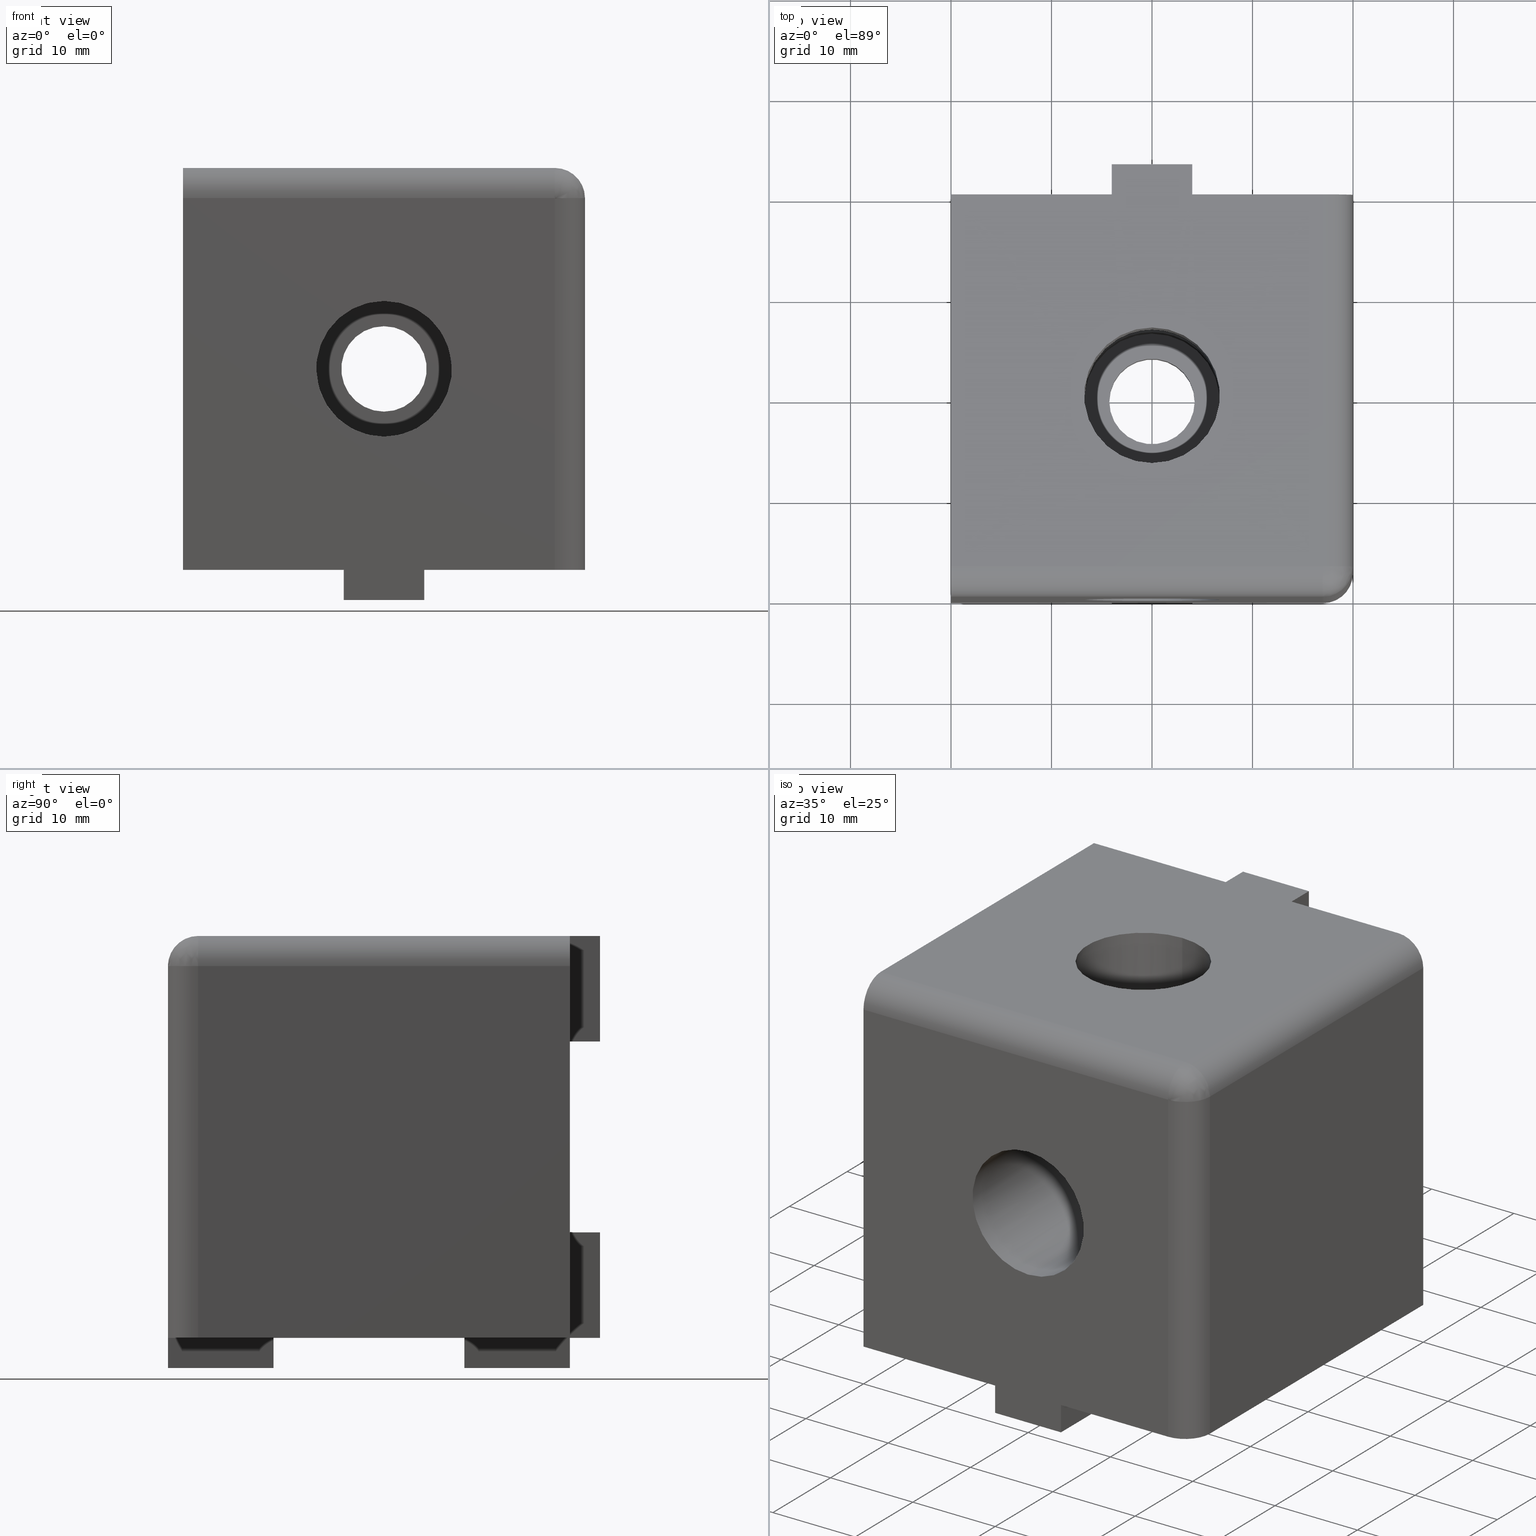
[diagram: canonical four-view strip — front | top / right | iso, engineering-drawing reading convention]
A machine part, canonical four-view strip (front | top / right | iso — engineering-drawing reading convention). The complete STEP part file that produces these views, byte-faithful:
ISO-10303-21;
HEADER;
/****************************************************************
 * Generated by software with PDE/Lib inside                    *
 * PDElib Version v4.4, created Mon 02/23/2004                  *
 * International Technegroup Inc. (www.iti-oh.com)              *
 ****************************************************************/
FILE_DESCRIPTION(('STEP AP203'),'2;1');
FILE_NAME('14.150.00.stp','2011-02-14T08:39:13',(''),(''),'2009.3.110','THINKDESIGN','');
FILE_SCHEMA(('CONFIG_CONTROL_DESIGN'));
ENDSEC;
DATA;
#2=CARTESIAN_POINT('',(0.0,-40.000000009999994,0.0));
#3=DIRECTION('',(0.0,1.0,0.0));
#4=DIRECTION('',(1.0,0.0,0.0));
#5=AXIS2_PLACEMENT_3D('',#2,#3,#4);
#6=CYLINDRICAL_SURFACE('',#5,6.749999999999997);
#7=CARTESIAN_POINT('',(0.0,-39.999999999999993,-6.750000000000005));
#8=VERTEX_POINT('',#7);
#9=CARTESIAN_POINT('',(0.0,-39.999999999999993,6.750000000000000));
#10=VERTEX_POINT('',#9);
#11=CARTESIAN_POINT('',(0.0,-39.999999999999993,0.0));
#12=DIRECTION('',(0.0,1.0,0.0));
#13=DIRECTION('',(0.0,0.0,1.0));
#14=AXIS2_PLACEMENT_3D('',#11,#12,#13);
#15=CIRCLE('',#14,6.749999999999997);
#16=EDGE_CURVE('',#8,#10,#15,.T.);
#17=ORIENTED_EDGE('',*,*,#16,.F.);
#18=CARTESIAN_POINT('',(0.0,-26.750000000000007,-6.750000000000005));
#19=VERTEX_POINT('',#18);
#20=CARTESIAN_POINT('',(0.0,-39.999999999999993,-6.750000000000005));
#21=DIRECTION('',(0.0,1.0,0.0));
#22=VECTOR('',#21,13.249999999999986);
#23=LINE('',#20,#22);
#24=EDGE_CURVE('',#8,#19,#23,.T.);
#25=ORIENTED_EDGE('',*,*,#24,.T.);
#26=CARTESIAN_POINT('',(-6.750000000000007,-20.000000000000004,0.0));
#27=VERTEX_POINT('',#26);
#28=CARTESIAN_POINT('',(-6.750000000000007,-20.000000000000004,0.0));
#29=CARTESIAN_POINT('',(-6.750000000000007,-23.954058453981609,-3.954058453981613));
#30=CARTESIAN_POINT('',(-3.954058453981595,-26.749999999999993,-6.749999999999999));
#31=CARTESIAN_POINT('',(0.0,-26.750000000000007,-6.750000000000005));
#39=(BOUNDED_CURVE()B_SPLINE_CURVE(3,(#28,#29,#30,#31),.UNSPECIFIED.,.F.,.U.)B_SPLINE_CURVE_WITH_KNOTS((4,4),(4.712388980384691,6.283185307179585),.UNSPECIFIED.)CURVE()GEOMETRIC_REPRESENTATION_ITEM()RATIONAL_B_SPLINE_CURVE((1.0,0.804737854124365,0.804737854124365,1.0))REPRESENTATION_ITEM(''));
#40=EDGE_CURVE('',#27,#19,#39,.T.);
#41=ORIENTED_EDGE('',*,*,#40,.F.);
#42=CARTESIAN_POINT('',(0.0,-26.750000000000007,6.750000000000000));
#43=VERTEX_POINT('',#42);
#44=CARTESIAN_POINT('',(0.0,-26.750000000000007,6.750000000000000));
#45=CARTESIAN_POINT('',(-3.954058453981595,-26.749999999999993,6.749999999999999));
#46=CARTESIAN_POINT('',(-6.750000000000007,-23.954058453981609,3.954058453981599));
#47=CARTESIAN_POINT('',(-6.750000000000007,-20.000000000000004,0.0));
#55=(BOUNDED_CURVE()B_SPLINE_CURVE(3,(#44,#45,#46,#47),.UNSPECIFIED.,.F.,.U.)B_SPLINE_CURVE_WITH_KNOTS((4,4),(3.141592653589793,4.712388980384691),.UNSPECIFIED.)CURVE()GEOMETRIC_REPRESENTATION_ITEM()RATIONAL_B_SPLINE_CURVE((1.0,0.804737854124365,0.804737854124365,1.0))REPRESENTATION_ITEM(''));
#56=EDGE_CURVE('',#43,#27,#55,.T.);
#57=ORIENTED_EDGE('',*,*,#56,.F.);
#58=CARTESIAN_POINT('',(0.0,-39.999999999999993,6.750000000000000));
#59=DIRECTION('',(0.0,1.0,0.0));
#60=VECTOR('',#59,13.249999999999986);
#61=LINE('',#58,#60);
#62=EDGE_CURVE('',#10,#43,#61,.T.);
#63=ORIENTED_EDGE('',*,*,#62,.F.);
#64=EDGE_LOOP('',(#17,#25,#41,#57,#63));
#65=FACE_OUTER_BOUND('',#64,.T.);
#66=ADVANCED_FACE('',(#65),#6,.F.);
#67=CARTESIAN_POINT('',(0.0,-20.000000010000001,0.0));
#68=DIRECTION('',(0.0,1.0,0.0));
#69=DIRECTION('',(1.0,0.0,0.0));
#70=AXIS2_PLACEMENT_3D('',#67,#68,#69);
#71=CYLINDRICAL_SURFACE('',#70,6.749999999999997);
#72=CARTESIAN_POINT('',(0.0,-13.250000000000004,-6.750000000000005));
#73=VERTEX_POINT('',#72);
#74=CARTESIAN_POINT('',(0.0,-13.250000000000004,-6.750000000000005));
#75=CARTESIAN_POINT('',(-3.954058453981595,-13.250000000000004,-6.749999999999999));
#76=CARTESIAN_POINT('',(-6.750000000000007,-16.045941546018398,-3.954058453981613));
#77=CARTESIAN_POINT('',(-6.750000000000007,-20.000000000000004,0.0));
#85=(BOUNDED_CURVE()B_SPLINE_CURVE(3,(#74,#75,#76,#77),.UNSPECIFIED.,.F.,.U.)B_SPLINE_CURVE_WITH_KNOTS((4,4),(0.0,1.570796326794897),.UNSPECIFIED.)CURVE()GEOMETRIC_REPRESENTATION_ITEM()RATIONAL_B_SPLINE_CURVE((1.0,0.804737854124365,0.804737854124365,1.0))REPRESENTATION_ITEM(''));
#86=EDGE_CURVE('',#73,#27,#85,.T.);
#87=ORIENTED_EDGE('',*,*,#86,.F.);
#88=CARTESIAN_POINT('',(0.0,-4.999999999999998,-6.750000000000005));
#89=VERTEX_POINT('',#88);
#90=CARTESIAN_POINT('',(0.0,-13.250000000000004,-6.750000000000005));
#91=DIRECTION('',(0.0,1.0,0.0));
#92=VECTOR('',#91,8.250000000000007);
#93=LINE('',#90,#92);
#94=EDGE_CURVE('',#73,#89,#93,.T.);
#95=ORIENTED_EDGE('',*,*,#94,.T.);
#96=CARTESIAN_POINT('',(0.0,-4.999999999999998,6.750000000000000));
#97=VERTEX_POINT('',#96);
#98=CARTESIAN_POINT('',(0.0,-4.999999999999998,0.0));
#99=DIRECTION('',(0.0,-1.0,0.0));
#100=DIRECTION('',(0.0,0.0,1.0));
#101=AXIS2_PLACEMENT_3D('',#98,#99,#100);
#102=CIRCLE('',#101,6.749999999999997);
#103=EDGE_CURVE('',#97,#89,#102,.T.);
#104=ORIENTED_EDGE('',*,*,#103,.F.);
#105=CARTESIAN_POINT('',(0.0,-13.250000000000004,6.750000000000000));
#106=VERTEX_POINT('',#105);
#107=CARTESIAN_POINT('',(0.0,-13.250000000000004,6.750000000000000));
#108=DIRECTION('',(0.0,1.0,0.0));
#109=VECTOR('',#108,8.250000000000007);
#110=LINE('',#107,#109);
#111=EDGE_CURVE('',#106,#97,#110,.T.);
#112=ORIENTED_EDGE('',*,*,#111,.F.);
#113=CARTESIAN_POINT('',(-6.750000000000007,-20.000000000000004,0.0));
#114=CARTESIAN_POINT('',(-6.750000000000007,-16.045941546018398,3.954058453981599));
#115=CARTESIAN_POINT('',(-3.954058453981595,-13.250000000000004,6.749999999999999));
#116=CARTESIAN_POINT('',(0.0,-13.250000000000004,6.750000000000000));
#124=(BOUNDED_CURVE()B_SPLINE_CURVE(3,(#113,#114,#115,#116),.UNSPECIFIED.,.F.,.U.)B_SPLINE_CURVE_WITH_KNOTS((4,4),(1.570796326794897,3.141592653589793),.UNSPECIFIED.)CURVE()GEOMETRIC_REPRESENTATION_ITEM()RATIONAL_B_SPLINE_CURVE((1.0,0.804737854124365,0.804737854124365,1.0))REPRESENTATION_ITEM(''));
#125=EDGE_CURVE('',#27,#106,#124,.T.);
#126=ORIENTED_EDGE('',*,*,#125,.F.);
#127=EDGE_LOOP('',(#87,#95,#104,#112,#126));
#128=FACE_OUTER_BOUND('',#127,.T.);
#129=ADVANCED_FACE('',(#128),#71,.F.);
#130=CARTESIAN_POINT('',(0.0,9.999994E-009,0.0));
#131=DIRECTION('',(0.0,-1.0,0.0));
#132=DIRECTION('',(1.0,0.0,0.0));
#133=AXIS2_PLACEMENT_3D('',#130,#131,#132);
#134=CYLINDRICAL_SURFACE('',#133,4.250000000000000);
#135=CARTESIAN_POINT('',(0.0,0.0,4.250000000000000));
#136=VERTEX_POINT('',#135);
#137=CARTESIAN_POINT('',(0.0,0.0,-4.250000000000005));
#138=VERTEX_POINT('',#137);
#139=CARTESIAN_POINT('',(0.0,0.0,0.0));
#140=DIRECTION('',(0.0,-1.0,0.0));
#141=DIRECTION('',(1.0,0.0,0.0));
#142=AXIS2_PLACEMENT_3D('',#139,#140,#141);
#143=CIRCLE('',#142,4.250000000000004);
#144=EDGE_CURVE('',#136,#138,#143,.T.);
#145=ORIENTED_EDGE('',*,*,#144,.F.);
#146=CARTESIAN_POINT('',(0.0,-5.000000000000005,4.250000000000000));
#147=VERTEX_POINT('',#146);
#148=CARTESIAN_POINT('',(0.0,6.217249E-015,4.250000000000000));
#149=DIRECTION('',(0.0,-1.0,0.0));
#150=VECTOR('',#149,5.000000000000012);
#151=LINE('',#148,#150);
#152=EDGE_CURVE('',#136,#147,#151,.T.);
#153=ORIENTED_EDGE('',*,*,#152,.T.);
#154=CARTESIAN_POINT('',(0.0,-5.000000000000005,-4.250000000000005));
#155=VERTEX_POINT('',#154);
#156=CARTESIAN_POINT('',(0.0,-5.000000000000005,0.0));
#157=DIRECTION('',(0.0,-1.0,0.0));
#158=DIRECTION('',(0.0,0.0,1.0));
#159=AXIS2_PLACEMENT_3D('',#156,#157,#158);
#160=CIRCLE('',#159,4.250000000000000);
#161=EDGE_CURVE('',#147,#155,#160,.T.);
#162=ORIENTED_EDGE('',*,*,#161,.T.);
#163=CARTESIAN_POINT('',(0.0,6.217249E-015,-4.250000000000005));
#164=DIRECTION('',(0.0,-1.0,0.0));
#165=VECTOR('',#164,5.000000000000012);
#166=LINE('',#163,#165);
#167=EDGE_CURVE('',#138,#155,#166,.T.);
#168=ORIENTED_EDGE('',*,*,#167,.F.);
#169=EDGE_LOOP('',(#145,#153,#162,#168));
#170=FACE_OUTER_BOUND('',#169,.T.);
#171=ADVANCED_FACE('',(#170),#134,.F.);
#172=CARTESIAN_POINT('',(0.0,-20.000000000000007,20.000000010000001));
#173=DIRECTION('',(0.0,0.0,-1.0));
#174=DIRECTION('',(-1.0,0.0,0.0));
#175=AXIS2_PLACEMENT_3D('',#172,#173,#174);
#176=CYLINDRICAL_SURFACE('',#175,6.749999999999997);
#177=CARTESIAN_POINT('',(0.0,-13.250000000000004,20.0));
#178=VERTEX_POINT('',#177);
#179=CARTESIAN_POINT('',(0.0,-26.750000000000007,20.0));
#180=VERTEX_POINT('',#179);
#181=CARTESIAN_POINT('',(0.0,-20.000000000000004,20.0));
#182=DIRECTION('',(0.0,0.0,-1.0));
#183=DIRECTION('',(0.0,-1.0,0.0));
#184=AXIS2_PLACEMENT_3D('',#181,#182,#183);
#185=CIRCLE('',#184,6.749999999999997);
#186=EDGE_CURVE('',#178,#180,#185,.T.);
#187=ORIENTED_EDGE('',*,*,#186,.F.);
#188=CARTESIAN_POINT('',(0.0,-13.250000000000004,20.0));
#189=DIRECTION('',(0.0,0.0,-1.0));
#190=VECTOR('',#189,13.250000000000000);
#191=LINE('',#188,#190);
#192=EDGE_CURVE('',#178,#106,#191,.T.);
#193=ORIENTED_EDGE('',*,*,#192,.T.);
#194=CARTESIAN_POINT('',(6.750000000000000,-20.000000000000004,0.0));
#195=VERTEX_POINT('',#194);
#196=CARTESIAN_POINT('',(0.0,-13.250000000000004,6.750000000000000));
#197=CARTESIAN_POINT('',(3.954058453981617,-13.250000000000004,6.749999999999999));
#198=CARTESIAN_POINT('',(6.749999999999999,-16.045941546018398,3.954058453981599));
#199=CARTESIAN_POINT('',(6.750000000000000,-20.000000000000004,0.0));
#207=(BOUNDED_CURVE()B_SPLINE_CURVE(3,(#196,#197,#198,#199),.UNSPECIFIED.,.F.,.U.)B_SPLINE_CURVE_WITH_KNOTS((4,4),(3.141592653589793,4.712388980384691),.UNSPECIFIED.)CURVE()GEOMETRIC_REPRESENTATION_ITEM()RATIONAL_B_SPLINE_CURVE((1.0,0.804737854124365,0.804737854124365,1.0))REPRESENTATION_ITEM(''));
#208=EDGE_CURVE('',#106,#195,#207,.T.);
#209=ORIENTED_EDGE('',*,*,#208,.T.);
#210=CARTESIAN_POINT('',(6.750000000000000,-20.000000000000004,0.0));
#211=CARTESIAN_POINT('',(6.749999999999999,-23.954058453981609,3.954058453981599));
#212=CARTESIAN_POINT('',(3.954058453981617,-26.749999999999993,6.749999999999999));
#213=CARTESIAN_POINT('',(0.0,-26.750000000000007,6.750000000000000));
#221=(BOUNDED_CURVE()B_SPLINE_CURVE(3,(#210,#211,#212,#213),.UNSPECIFIED.,.F.,.U.)B_SPLINE_CURVE_WITH_KNOTS((4,4),(1.570796326794897,3.141592653589793),.UNSPECIFIED.)CURVE()GEOMETRIC_REPRESENTATION_ITEM()RATIONAL_B_SPLINE_CURVE((1.0,0.804737854124365,0.804737854124365,1.0))REPRESENTATION_ITEM(''));
#222=EDGE_CURVE('',#195,#43,#221,.T.);
#223=ORIENTED_EDGE('',*,*,#222,.T.);
#224=CARTESIAN_POINT('',(0.0,-26.750000000000007,20.0));
#225=DIRECTION('',(0.0,0.0,-1.0));
#226=VECTOR('',#225,13.250000000000000);
#227=LINE('',#224,#226);
#228=EDGE_CURVE('',#180,#43,#227,.T.);
#229=ORIENTED_EDGE('',*,*,#228,.F.);
#230=EDGE_LOOP('',(#187,#193,#209,#223,#229));
#231=FACE_OUTER_BOUND('',#230,.T.);
#232=ADVANCED_FACE('',(#231),#176,.F.);
#233=CARTESIAN_POINT('',(0.0,-20.000000000000007,-20.000000009999994));
#234=DIRECTION('',(0.0,0.0,1.0));
#235=DIRECTION('',(0.0,1.0,0.0));
#236=AXIS2_PLACEMENT_3D('',#233,#234,#235);
#237=CYLINDRICAL_SURFACE('',#236,4.249999999999997);
#238=CARTESIAN_POINT('',(-4.250000000000007,-20.000000000000007,-20.0));
#239=VERTEX_POINT('',#238);
#240=CARTESIAN_POINT('',(4.250000000000000,-20.000000000000007,-20.0));
#241=VERTEX_POINT('',#240);
#242=CARTESIAN_POINT('',(0.0,-20.000000000000007,-20.0));
#243=DIRECTION('',(0.0,0.0,1.0));
#244=DIRECTION('',(1.0,0.0,0.0));
#245=AXIS2_PLACEMENT_3D('',#242,#243,#244);
#246=CIRCLE('',#245,4.249999999999997);
#247=EDGE_CURVE('',#239,#241,#246,.T.);
#248=ORIENTED_EDGE('',*,*,#247,.F.);
#249=CARTESIAN_POINT('',(-4.250000000000007,-20.000000000000007,-14.999999999999995));
#250=VERTEX_POINT('',#249);
#251=CARTESIAN_POINT('',(-4.250000000000007,-20.000000000000007,-20.0));
#252=DIRECTION('',(0.0,0.0,1.0));
#253=VECTOR('',#252,5.000000000000005);
#254=LINE('',#251,#253);
#255=EDGE_CURVE('',#239,#250,#254,.T.);
#256=ORIENTED_EDGE('',*,*,#255,.T.);
#257=CARTESIAN_POINT('',(4.250000000000000,-20.000000000000007,-14.999999999999995));
#258=VERTEX_POINT('',#257);
#259=CARTESIAN_POINT('',(0.0,-20.000000000000007,-14.999999999999995));
#260=DIRECTION('',(0.0,0.0,1.0));
#261=DIRECTION('',(-1.0,0.0,0.0));
#262=AXIS2_PLACEMENT_3D('',#259,#260,#261);
#263=CIRCLE('',#262,4.249999999999997);
#264=EDGE_CURVE('',#250,#258,#263,.T.);
#265=ORIENTED_EDGE('',*,*,#264,.T.);
#266=CARTESIAN_POINT('',(4.250000000000000,-20.000000000000007,-20.0));
#267=DIRECTION('',(0.0,0.0,1.0));
#268=VECTOR('',#267,5.000000000000005);
#269=LINE('',#266,#268);
#270=EDGE_CURVE('',#241,#258,#269,.T.);
#271=ORIENTED_EDGE('',*,*,#270,.F.);
#272=EDGE_LOOP('',(#248,#256,#265,#271));
#273=FACE_OUTER_BOUND('',#272,.T.);
#274=ADVANCED_FACE('',(#273),#237,.F.);
#275=CARTESIAN_POINT('',(0.0,-20.000000000000007,0.000000010000001));
#276=DIRECTION('',(0.0,0.0,-1.0));
#277=DIRECTION('',(-1.0,0.0,0.0));
#278=AXIS2_PLACEMENT_3D('',#275,#276,#277);
#279=CYLINDRICAL_SURFACE('',#278,6.749999999999997);
#280=CARTESIAN_POINT('',(6.750000000000000,-20.000000000000004,0.0));
#281=CARTESIAN_POINT('',(6.749999999999999,-16.045941546018398,-3.954058453981613));
#282=CARTESIAN_POINT('',(3.954058453981617,-13.250000000000004,-6.749999999999999));
#283=CARTESIAN_POINT('',(0.0,-13.250000000000004,-6.750000000000005));
#291=(BOUNDED_CURVE()B_SPLINE_CURVE(3,(#280,#281,#282,#283),.UNSPECIFIED.,.F.,.U.)B_SPLINE_CURVE_WITH_KNOTS((4,4),(4.712388980384691,6.283185307179585),.UNSPECIFIED.)CURVE()GEOMETRIC_REPRESENTATION_ITEM()RATIONAL_B_SPLINE_CURVE((1.0,0.804737854124365,0.804737854124365,1.0))REPRESENTATION_ITEM(''));
#292=EDGE_CURVE('',#195,#73,#291,.T.);
#293=ORIENTED_EDGE('',*,*,#292,.T.);
#294=CARTESIAN_POINT('',(0.0,-13.250000000000004,-15.000000000000004));
#295=VERTEX_POINT('',#294);
#296=CARTESIAN_POINT('',(0.0,-13.250000000000004,-6.750000000000007));
#297=DIRECTION('',(0.0,0.0,-1.0));
#298=VECTOR('',#297,8.249999999999996);
#299=LINE('',#296,#298);
#300=EDGE_CURVE('',#73,#295,#299,.T.);
#301=ORIENTED_EDGE('',*,*,#300,.T.);
#302=CARTESIAN_POINT('',(0.0,-26.750000000000007,-15.000000000000004));
#303=VERTEX_POINT('',#302);
#304=CARTESIAN_POINT('',(0.0,-20.000000000000004,-15.000000000000004));
#305=DIRECTION('',(0.0,0.0,1.0));
#306=DIRECTION('',(0.0,-1.0,0.0));
#307=AXIS2_PLACEMENT_3D('',#304,#305,#306);
#308=CIRCLE('',#307,6.749999999999997);
#309=EDGE_CURVE('',#303,#295,#308,.T.);
#310=ORIENTED_EDGE('',*,*,#309,.F.);
#311=CARTESIAN_POINT('',(0.0,-26.750000000000007,-6.750000000000007));
#312=DIRECTION('',(0.0,0.0,-1.0));
#313=VECTOR('',#312,8.249999999999996);
#314=LINE('',#311,#313);
#315=EDGE_CURVE('',#19,#303,#314,.T.);
#316=ORIENTED_EDGE('',*,*,#315,.F.);
#317=CARTESIAN_POINT('',(0.0,-26.750000000000007,-6.750000000000005));
#318=CARTESIAN_POINT('',(3.954058453981617,-26.749999999999993,-6.749999999999999));
#319=CARTESIAN_POINT('',(6.749999999999999,-23.954058453981609,-3.954058453981613));
#320=CARTESIAN_POINT('',(6.750000000000000,-20.000000000000004,0.0));
#328=(BOUNDED_CURVE()B_SPLINE_CURVE(3,(#317,#318,#319,#320),.UNSPECIFIED.,.F.,.U.)B_SPLINE_CURVE_WITH_KNOTS((4,4),(0.0,1.570796326794897),.UNSPECIFIED.)CURVE()GEOMETRIC_REPRESENTATION_ITEM()RATIONAL_B_SPLINE_CURVE((1.0,0.804737854124365,0.804737854124365,1.0))REPRESENTATION_ITEM(''));
#329=EDGE_CURVE('',#19,#195,#328,.T.);
#330=ORIENTED_EDGE('',*,*,#329,.T.);
#331=EDGE_LOOP('',(#293,#301,#310,#316,#330));
#332=FACE_OUTER_BOUND('',#331,.T.);
#333=ADVANCED_FACE('',(#332),#279,.F.);
#334=CARTESIAN_POINT('',(-22.000000000000014,-42.000000000000007,-20.0));
#335=DIRECTION('',(0.0,0.0,1.0));
#336=DIRECTION('',(1.0,0.0,0.0));
#337=AXIS2_PLACEMENT_3D('',#334,#335,#336);
#338=PLANE('',#337);
#339=CARTESIAN_POINT('',(20.000000000000004,-37.000000000000007,-20.0));
#340=VERTEX_POINT('',#339);
#341=CARTESIAN_POINT('',(20.000000000000004,0.0,-20.0));
#342=VERTEX_POINT('',#341);
#343=CARTESIAN_POINT('',(20.000000000000004,-37.000000000000007,-20.0));
#344=DIRECTION('',(0.0,1.0,0.0));
#345=VECTOR('',#344,37.000000000000007);
#346=LINE('',#343,#345);
#347=EDGE_CURVE('',#340,#342,#346,.T.);
#348=ORIENTED_EDGE('',*,*,#347,.F.);
#349=CARTESIAN_POINT('',(17.0,-40.000000000000007,-20.0));
#350=VERTEX_POINT('',#349);
#351=CARTESIAN_POINT('',(17.0,-37.000000000000007,-20.0));
#352=DIRECTION('',(0.0,0.0,-1.0));
#353=DIRECTION('',(1.0,0.0,0.0));
#354=AXIS2_PLACEMENT_3D('',#351,#352,#353);
#355=CIRCLE('',#354,2.999999999999999);
#356=EDGE_CURVE('',#340,#350,#355,.T.);
#357=ORIENTED_EDGE('',*,*,#356,.T.);
#358=CARTESIAN_POINT('',(4.0,-40.000000000000007,-20.0));
#359=VERTEX_POINT('',#358);
#360=CARTESIAN_POINT('',(4.0,-40.000000000000007,-20.0));
#361=DIRECTION('',(1.0,0.0,0.0));
#362=VECTOR('',#361,13.0);
#363=LINE('',#360,#362);
#364=EDGE_CURVE('',#359,#350,#363,.T.);
#365=ORIENTED_EDGE('',*,*,#364,.F.);
#366=CARTESIAN_POINT('',(4.0,-29.500000000000007,-20.0));
#367=VERTEX_POINT('',#366);
#368=CARTESIAN_POINT('',(4.0,-40.000000000000007,-20.0));
#369=DIRECTION('',(0.0,1.0,0.0));
#370=VECTOR('',#369,10.500000000000000);
#371=LINE('',#368,#370);
#372=EDGE_CURVE('',#359,#367,#371,.T.);
#373=ORIENTED_EDGE('',*,*,#372,.T.);
#374=CARTESIAN_POINT('',(-4.000000000000007,-29.500000000000007,-20.0));
#375=VERTEX_POINT('',#374);
#376=CARTESIAN_POINT('',(4.0,-29.500000000000007,-20.0));
#377=DIRECTION('',(-1.0,0.0,0.0));
#378=VECTOR('',#377,8.000000000000007);
#379=LINE('',#376,#378);
#380=EDGE_CURVE('',#367,#375,#379,.T.);
#381=ORIENTED_EDGE('',*,*,#380,.T.);
#382=CARTESIAN_POINT('',(-4.000000000000007,-40.000000000000007,-20.0));
#383=VERTEX_POINT('',#382);
#384=CARTESIAN_POINT('',(-4.000000000000007,-29.500000000000007,-20.0));
#385=DIRECTION('',(0.0,-1.0,0.0));
#386=VECTOR('',#385,10.500000000000000);
#387=LINE('',#384,#386);
#388=EDGE_CURVE('',#375,#383,#387,.T.);
#389=ORIENTED_EDGE('',*,*,#388,.T.);
#390=CARTESIAN_POINT('',(-20.000000000000014,-40.000000000000007,-20.0));
#391=VERTEX_POINT('',#390);
#392=CARTESIAN_POINT('',(-20.000000000000014,-40.000000000000007,-20.0));
#393=DIRECTION('',(1.0,0.0,0.0));
#394=VECTOR('',#393,16.000000000000007);
#395=LINE('',#392,#394);
#396=EDGE_CURVE('',#391,#383,#395,.T.);
#397=ORIENTED_EDGE('',*,*,#396,.F.);
#398=CARTESIAN_POINT('',(-20.000000000000014,-8.881784E-015,-20.0));
#399=VERTEX_POINT('',#398);
#400=CARTESIAN_POINT('',(-20.000000000000014,-8.881784E-015,-20.0));
#401=DIRECTION('',(0.0,-1.0,0.0));
#402=VECTOR('',#401,40.0);
#403=LINE('',#400,#402);
#404=EDGE_CURVE('',#399,#391,#403,.T.);
#405=ORIENTED_EDGE('',*,*,#404,.F.);
#406=CARTESIAN_POINT('',(-4.000000000000007,-3.552714E-015,-20.0));
#407=VERTEX_POINT('',#406);
#408=CARTESIAN_POINT('',(-4.000000000000007,0.0,-20.0));
#409=DIRECTION('',(-1.0,0.0,0.0));
#410=VECTOR('',#409,16.000000000000007);
#411=LINE('',#408,#410);
#412=EDGE_CURVE('',#407,#399,#411,.T.);
#413=ORIENTED_EDGE('',*,*,#412,.F.);
#414=CARTESIAN_POINT('',(-4.000000000000007,-10.500000000000005,-20.0));
#415=VERTEX_POINT('',#414);
#416=CARTESIAN_POINT('',(-4.000000000000007,-10.500000000000005,-20.0));
#417=DIRECTION('',(0.0,1.0,0.0));
#418=VECTOR('',#417,10.500000000000002);
#419=LINE('',#416,#418);
#420=EDGE_CURVE('',#415,#407,#419,.T.);
#421=ORIENTED_EDGE('',*,*,#420,.F.);
#422=CARTESIAN_POINT('',(4.0,-10.500000000000005,-20.0));
#423=VERTEX_POINT('',#422);
#424=CARTESIAN_POINT('',(4.0,-10.500000000000005,-20.0));
#425=DIRECTION('',(-1.0,0.0,0.0));
#426=VECTOR('',#425,8.000000000000007);
#427=LINE('',#424,#426);
#428=EDGE_CURVE('',#423,#415,#427,.T.);
#429=ORIENTED_EDGE('',*,*,#428,.F.);
#430=CARTESIAN_POINT('',(4.0,-3.552714E-015,-20.0));
#431=VERTEX_POINT('',#430);
#432=CARTESIAN_POINT('',(4.0,-3.552714E-015,-20.0));
#433=DIRECTION('',(0.0,-1.0,0.0));
#434=VECTOR('',#433,10.500000000000002);
#435=LINE('',#432,#434);
#436=EDGE_CURVE('',#431,#423,#435,.T.);
#437=ORIENTED_EDGE('',*,*,#436,.F.);
#438=CARTESIAN_POINT('',(20.000000000000004,0.0,-20.0));
#439=DIRECTION('',(-1.0,0.0,0.0));
#440=VECTOR('',#439,16.000000000000004);
#441=LINE('',#438,#440);
#442=EDGE_CURVE('',#342,#431,#441,.T.);
#443=ORIENTED_EDGE('',*,*,#442,.F.);
#444=EDGE_LOOP('',(#348,#357,#365,#373,#381,#389,#397,#405,#413,#421,#429,#437,#443));
#445=FACE_OUTER_BOUND('',#444,.T.);
#446=CARTESIAN_POINT('',(0.0,-20.000000000000007,-20.0));
#447=DIRECTION('',(0.0,0.0,1.0));
#448=DIRECTION('',(1.0,0.0,0.0));
#449=AXIS2_PLACEMENT_3D('',#446,#447,#448);
#450=CIRCLE('',#449,4.249999999999997);
#451=EDGE_CURVE('',#241,#239,#450,.T.);
#452=ORIENTED_EDGE('',*,*,#451,.T.);
#453=ORIENTED_EDGE('',*,*,#247,.T.);
#454=EDGE_LOOP('',(#452,#453));
#455=FACE_BOUND('',#454,.T.);
#456=ADVANCED_FACE('',(#445,#455),#338,.F.);
#457=CARTESIAN_POINT('',(-20.000000000000014,-40.000000000000007,-20.0));
#458=DIRECTION('',(0.0,0.0,1.0));
#459=DIRECTION('',(1.0,0.0,0.0));
#460=AXIS2_PLACEMENT_3D('',#457,#458,#459);
#461=PLANE('',#460);
#462=CARTESIAN_POINT('',(3.911610471131233,-3.552714E-015,-20.0));
#463=VERTEX_POINT('',#462);
#464=CARTESIAN_POINT('',(-4.000000000000007,-3.552714E-015,-20.0));
#465=DIRECTION('',(1.0,0.0,0.0));
#466=VECTOR('',#465,7.911610471131240);
#467=LINE('',#464,#466);
#468=EDGE_CURVE('',#407,#463,#467,.T.);
#469=ORIENTED_EDGE('',*,*,#468,.F.);
#470=CARTESIAN_POINT('',(-4.000000000000007,2.999999999999995,-20.0));
#471=VERTEX_POINT('',#470);
#472=CARTESIAN_POINT('',(-4.000000000000007,2.999999999999995,-20.0));
#473=DIRECTION('',(0.0,-1.0,0.0));
#474=VECTOR('',#473,2.999999999999998);
#475=LINE('',#472,#474);
#476=EDGE_CURVE('',#471,#407,#475,.T.);
#477=ORIENTED_EDGE('',*,*,#476,.F.);
#478=CARTESIAN_POINT('',(3.911610471131233,2.999999999999997,-20.0));
#479=VERTEX_POINT('',#478);
#480=CARTESIAN_POINT('',(-4.000000000000007,2.999999999999995,-20.0));
#481=DIRECTION('',(1.0,0.0,0.0));
#482=VECTOR('',#481,7.911610471131240);
#483=LINE('',#480,#482);
#484=EDGE_CURVE('',#471,#479,#483,.T.);
#485=ORIENTED_EDGE('',*,*,#484,.T.);
#486=CARTESIAN_POINT('',(3.911610471131233,2.999999999999997,-20.0));
#487=DIRECTION('',(0.0,-1.0,0.0));
#488=VECTOR('',#487,3.000000000000001);
#489=LINE('',#486,#488);
#490=EDGE_CURVE('',#479,#463,#489,.T.);
#491=ORIENTED_EDGE('',*,*,#490,.T.);
#492=EDGE_LOOP('',(#469,#477,#485,#491));
#493=FACE_OUTER_BOUND('',#492,.T.);
#494=ADVANCED_FACE('',(#493),#461,.F.);
#495=CARTESIAN_POINT('',(-22.000000000000014,0.0,-25.149999999999999));
#496=DIRECTION('',(0.0,-1.0,0.0));
#497=DIRECTION('',(1.0,0.0,0.0));
#498=AXIS2_PLACEMENT_3D('',#495,#496,#497);
#499=PLANE('',#498);
#500=CARTESIAN_POINT('',(17.0,-1.776357E-015,20.0));
#501=VERTEX_POINT('',#500);
#502=CARTESIAN_POINT('',(4.0,-3.552714E-015,20.0));
#503=VERTEX_POINT('',#502);
#504=CARTESIAN_POINT('',(17.0,0.0,20.0));
#505=DIRECTION('',(-1.0,0.0,0.0));
#506=VECTOR('',#505,13.0);
#507=LINE('',#504,#506);
#508=EDGE_CURVE('',#501,#503,#507,.T.);
#509=ORIENTED_EDGE('',*,*,#508,.F.);
#510=CARTESIAN_POINT('',(20.000000000000004,0.0,17.0));
#511=VERTEX_POINT('',#510);
#512=CARTESIAN_POINT('',(17.0,0.0,17.0));
#513=DIRECTION('',(0.0,1.0,0.0));
#514=DIRECTION('',(1.0,0.0,0.0));
#515=AXIS2_PLACEMENT_3D('',#512,#513,#514);
#516=CIRCLE('',#515,2.999999999999999);
#517=EDGE_CURVE('',#501,#511,#516,.T.);
#518=ORIENTED_EDGE('',*,*,#517,.T.);
#519=CARTESIAN_POINT('',(20.000000000000004,0.0,17.0));
#520=DIRECTION('',(0.0,0.0,-1.0));
#521=VECTOR('',#520,37.0);
#522=LINE('',#519,#521);
#523=EDGE_CURVE('',#511,#342,#522,.T.);
#524=ORIENTED_EDGE('',*,*,#523,.T.);
#525=ORIENTED_EDGE('',*,*,#442,.T.);
#526=CARTESIAN_POINT('',(4.0,-3.552714E-015,-23.0));
#527=VERTEX_POINT('',#526);
#528=CARTESIAN_POINT('',(4.0,-3.552714E-015,-23.0));
#529=DIRECTION('',(0.0,0.0,1.0));
#530=VECTOR('',#529,3.0);
#531=LINE('',#528,#530);
#532=EDGE_CURVE('',#527,#431,#531,.T.);
#533=ORIENTED_EDGE('',*,*,#532,.F.);
#534=CARTESIAN_POINT('',(-4.000000000000007,-3.552714E-015,-23.0));
#535=VERTEX_POINT('',#534);
#536=CARTESIAN_POINT('',(-4.000000000000007,-3.552714E-015,-23.0));
#537=DIRECTION('',(1.0,0.0,0.0));
#538=VECTOR('',#537,8.000000000000007);
#539=LINE('',#536,#538);
#540=EDGE_CURVE('',#535,#527,#539,.T.);
#541=ORIENTED_EDGE('',*,*,#540,.F.);
#542=CARTESIAN_POINT('',(-4.000000000000007,-3.552714E-015,-23.0));
#543=DIRECTION('',(0.0,0.0,1.0));
#544=VECTOR('',#543,3.0);
#545=LINE('',#542,#544);
#546=EDGE_CURVE('',#535,#407,#545,.T.);
#547=ORIENTED_EDGE('',*,*,#546,.T.);
#548=ORIENTED_EDGE('',*,*,#468,.T.);
#549=CARTESIAN_POINT('',(3.911610471131233,-3.552714E-015,-9.499999999999996));
#550=VERTEX_POINT('',#549);
#551=CARTESIAN_POINT('',(3.911610471131233,-3.552714E-015,-20.0));
#552=DIRECTION('',(0.0,0.0,1.0));
#553=VECTOR('',#552,10.500000000000004);
#554=LINE('',#551,#553);
#555=EDGE_CURVE('',#463,#550,#554,.T.);
#556=ORIENTED_EDGE('',*,*,#555,.T.);
#557=CARTESIAN_POINT('',(-4.000000000000007,-6.217249E-015,-9.499999999999996));
#558=VERTEX_POINT('',#557);
#559=CARTESIAN_POINT('',(3.911610471131233,-6.217249E-015,-9.500000000000000));
#560=DIRECTION('',(-1.0,0.0,0.0));
#561=VECTOR('',#560,7.911610471131240);
#562=LINE('',#559,#561);
#563=EDGE_CURVE('',#550,#558,#562,.T.);
#564=ORIENTED_EDGE('',*,*,#563,.T.);
#565=CARTESIAN_POINT('',(-4.000000000000007,-6.217249E-015,-9.499999999999996));
#566=DIRECTION('',(0.0,0.0,-1.0));
#567=VECTOR('',#566,10.500000000000004);
#568=LINE('',#565,#567);
#569=EDGE_CURVE('',#558,#407,#568,.T.);
#570=ORIENTED_EDGE('',*,*,#569,.T.);
#571=ORIENTED_EDGE('',*,*,#412,.T.);
#572=CARTESIAN_POINT('',(-20.000000000000014,-8.881784E-015,20.0));
#573=VERTEX_POINT('',#572);
#574=CARTESIAN_POINT('',(-20.000000000000014,-8.881784E-015,20.0));
#575=DIRECTION('',(0.0,0.0,-1.0));
#576=VECTOR('',#575,40.0);
#577=LINE('',#574,#576);
#578=EDGE_CURVE('',#573,#399,#577,.T.);
#579=ORIENTED_EDGE('',*,*,#578,.F.);
#580=CARTESIAN_POINT('',(-4.000000000000007,-6.217249E-015,20.0));
#581=VERTEX_POINT('',#580);
#582=CARTESIAN_POINT('',(-4.000000000000007,0.0,20.0));
#583=DIRECTION('',(-1.0,0.0,0.0));
#584=VECTOR('',#583,16.000000000000007);
#585=LINE('',#582,#584);
#586=EDGE_CURVE('',#581,#573,#585,.T.);
#587=ORIENTED_EDGE('',*,*,#586,.F.);
#588=CARTESIAN_POINT('',(-4.000000000000007,-6.217249E-015,9.500000000000000));
#589=VERTEX_POINT('',#588);
#590=CARTESIAN_POINT('',(-4.000000000000007,-6.217249E-015,9.500000000000000));
#591=DIRECTION('',(0.0,0.0,1.0));
#592=VECTOR('',#591,10.500000000000000);
#593=LINE('',#590,#592);
#594=EDGE_CURVE('',#589,#581,#593,.T.);
#595=ORIENTED_EDGE('',*,*,#594,.F.);
#596=CARTESIAN_POINT('',(4.0,-3.552714E-015,9.500000000000000));
#597=VERTEX_POINT('',#596);
#598=CARTESIAN_POINT('',(4.0,-6.217249E-015,9.500000000000000));
#599=DIRECTION('',(-1.0,0.0,0.0));
#600=VECTOR('',#599,8.000000000000007);
#601=LINE('',#598,#600);
#602=EDGE_CURVE('',#597,#589,#601,.T.);
#603=ORIENTED_EDGE('',*,*,#602,.F.);
#604=CARTESIAN_POINT('',(4.0,-3.552714E-015,20.0));
#605=DIRECTION('',(0.0,0.0,-1.0));
#606=VECTOR('',#605,10.500000000000000);
#607=LINE('',#604,#606);
#608=EDGE_CURVE('',#503,#597,#607,.T.);
#609=ORIENTED_EDGE('',*,*,#608,.F.);
#610=EDGE_LOOP('',(#509,#518,#524,#525,#533,#541,#547,#548,#556,#564,#570,#571,#579,#587,#595,#603,#609));
#611=FACE_OUTER_BOUND('',#610,.T.);
#612=CARTESIAN_POINT('',(0.0,0.0,0.0));
#613=DIRECTION('',(0.0,-1.0,0.0));
#614=DIRECTION('',(1.0,0.0,0.0));
#615=AXIS2_PLACEMENT_3D('',#612,#613,#614);
#616=CIRCLE('',#615,4.250000000000004);
#617=EDGE_CURVE('',#138,#136,#616,.T.);
#618=ORIENTED_EDGE('',*,*,#617,.T.);
#619=ORIENTED_EDGE('',*,*,#144,.T.);
#620=EDGE_LOOP('',(#618,#619));
#621=FACE_BOUND('',#620,.T.);
#622=ADVANCED_FACE('',(#611,#621),#499,.F.);
#623=CARTESIAN_POINT('',(7.105427E-015,-20.0,0.000000010000001));
#624=DIRECTION('',(0.0,0.0,-1.0));
#625=DIRECTION('',(1.0,0.0,0.0));
#626=AXIS2_PLACEMENT_3D('',#623,#624,#625);
#627=CYLINDRICAL_SURFACE('',#626,6.749999999999997);
#628=ORIENTED_EDGE('',*,*,#300,.F.);
#629=ORIENTED_EDGE('',*,*,#86,.T.);
#630=ORIENTED_EDGE('',*,*,#40,.T.);
#631=ORIENTED_EDGE('',*,*,#315,.T.);
#632=CARTESIAN_POINT('',(0.0,-20.000000000000004,-15.000000000000004));
#633=DIRECTION('',(0.0,0.0,1.0));
#634=DIRECTION('',(0.0,-1.0,0.0));
#635=AXIS2_PLACEMENT_3D('',#632,#633,#634);
#636=CIRCLE('',#635,6.749999999999997);
#637=EDGE_CURVE('',#295,#303,#636,.T.);
#638=ORIENTED_EDGE('',*,*,#637,.F.);
#639=EDGE_LOOP('',(#628,#629,#630,#631,#638));
#640=FACE_OUTER_BOUND('',#639,.T.);
#641=ADVANCED_FACE('',(#640),#627,.F.);
#642=CARTESIAN_POINT('',(-20.000000000000014,-42.000000000000007,22.0));
#643=DIRECTION('',(1.0,0.0,0.0));
#644=DIRECTION('',(0.0,0.0,-1.0));
#645=AXIS2_PLACEMENT_3D('',#642,#643,#644);
#646=PLANE('',#645);
#647=CARTESIAN_POINT('',(-20.000000000000014,-40.000000000000007,17.0));
#648=VERTEX_POINT('',#647);
#649=CARTESIAN_POINT('',(-20.000000000000014,-40.000000000000007,17.0));
#650=DIRECTION('',(0.0,0.0,-1.0));
#651=VECTOR('',#650,37.0);
#652=LINE('',#649,#651);
#653=EDGE_CURVE('',#648,#391,#652,.T.);
#654=ORIENTED_EDGE('',*,*,#653,.F.);
#655=CARTESIAN_POINT('',(-20.000000000000014,-37.000000000000007,20.0));
#656=VERTEX_POINT('',#655);
#657=CARTESIAN_POINT('',(-20.000000000000014,-37.000000000000007,17.0));
#658=DIRECTION('',(-1.0,0.0,0.0));
#659=DIRECTION('',(0.0,0.0,-1.0));
#660=AXIS2_PLACEMENT_3D('',#657,#658,#659);
#661=CIRCLE('',#660,3.000000000000002);
#662=EDGE_CURVE('',#648,#656,#661,.T.);
#663=ORIENTED_EDGE('',*,*,#662,.T.);
#664=CARTESIAN_POINT('',(-20.000000000000014,-8.881784E-015,20.0));
#665=DIRECTION('',(0.0,-1.0,0.0));
#666=VECTOR('',#665,37.0);
#667=LINE('',#664,#666);
#668=EDGE_CURVE('',#573,#656,#667,.T.);
#669=ORIENTED_EDGE('',*,*,#668,.F.);
#670=ORIENTED_EDGE('',*,*,#578,.T.);
#671=ORIENTED_EDGE('',*,*,#404,.T.);
#672=EDGE_LOOP('',(#654,#663,#669,#670,#671));
#673=FACE_OUTER_BOUND('',#672,.T.);
#674=ADVANCED_FACE('',(#673),#646,.F.);
#675=CARTESIAN_POINT('',(-21.850000000000009,-40.000000000000007,-25.0));
#676=DIRECTION('',(0.0,1.0,0.0));
#677=DIRECTION('',(0.0,0.0,1.0));
#678=AXIS2_PLACEMENT_3D('',#675,#676,#677);
#679=PLANE('',#678);
#680=CARTESIAN_POINT('',(17.000000000000007,-40.0,17.0));
#681=VERTEX_POINT('',#680);
#682=CARTESIAN_POINT('',(17.0,-40.000000000000007,-20.0));
#683=DIRECTION('',(0.0,0.0,1.0));
#684=VECTOR('',#683,37.0);
#685=LINE('',#682,#684);
#686=EDGE_CURVE('',#350,#681,#685,.T.);
#687=ORIENTED_EDGE('',*,*,#686,.T.);
#688=CARTESIAN_POINT('',(17.0,-40.000000000000007,17.0));
#689=DIRECTION('',(-1.0,0.0,0.0));
#690=VECTOR('',#689,37.000000000000014);
#691=LINE('',#688,#690);
#692=EDGE_CURVE('',#681,#648,#691,.T.);
#693=ORIENTED_EDGE('',*,*,#692,.T.);
#694=ORIENTED_EDGE('',*,*,#653,.T.);
#695=ORIENTED_EDGE('',*,*,#396,.T.);
#696=CARTESIAN_POINT('',(-4.000000000000007,-40.000000000000007,-23.0));
#697=VERTEX_POINT('',#696);
#698=CARTESIAN_POINT('',(-4.000000000000007,-40.000000000000007,-23.0));
#699=DIRECTION('',(0.0,0.0,1.0));
#700=VECTOR('',#699,3.0);
#701=LINE('',#698,#700);
#702=EDGE_CURVE('',#697,#383,#701,.T.);
#703=ORIENTED_EDGE('',*,*,#702,.F.);
#704=CARTESIAN_POINT('',(4.0,-40.000000000000007,-23.0));
#705=VERTEX_POINT('',#704);
#706=CARTESIAN_POINT('',(-4.000000000000007,-40.000000000000007,-23.0));
#707=DIRECTION('',(1.0,0.0,0.0));
#708=VECTOR('',#707,8.000000000000007);
#709=LINE('',#706,#708);
#710=EDGE_CURVE('',#697,#705,#709,.T.);
#711=ORIENTED_EDGE('',*,*,#710,.T.);
#712=CARTESIAN_POINT('',(4.0,-40.000000000000007,-23.0));
#713=DIRECTION('',(0.0,0.0,1.0));
#714=VECTOR('',#713,3.0);
#715=LINE('',#712,#714);
#716=EDGE_CURVE('',#705,#359,#715,.T.);
#717=ORIENTED_EDGE('',*,*,#716,.T.);
#718=ORIENTED_EDGE('',*,*,#364,.T.);
#719=EDGE_LOOP('',(#687,#693,#694,#695,#703,#711,#717,#718));
#720=FACE_OUTER_BOUND('',#719,.T.);
#721=CARTESIAN_POINT('',(0.0,-39.999999999999993,0.0));
#722=DIRECTION('',(0.0,1.0,0.0));
#723=DIRECTION('',(0.0,0.0,1.0));
#724=AXIS2_PLACEMENT_3D('',#721,#722,#723);
#725=CIRCLE('',#724,6.749999999999997);
#726=EDGE_CURVE('',#10,#8,#725,.T.);
#727=ORIENTED_EDGE('',*,*,#726,.T.);
#728=ORIENTED_EDGE('',*,*,#16,.T.);
#729=EDGE_LOOP('',(#727,#728));
#730=FACE_BOUND('',#729,.T.);
#731=ADVANCED_FACE('',(#720,#730),#679,.F.);
#732=CARTESIAN_POINT('',(20.000000000000004,-38.850000000000009,-21.850000000000001));
#733=DIRECTION('',(-1.0,0.0,0.0));
#734=DIRECTION('',(0.0,0.0,1.0));
#735=AXIS2_PLACEMENT_3D('',#732,#733,#734);
#736=PLANE('',#735);
#737=ORIENTED_EDGE('',*,*,#523,.F.);
#738=CARTESIAN_POINT('',(20.000000000000004,-37.000000000000007,17.0));
#739=VERTEX_POINT('',#738);
#740=CARTESIAN_POINT('',(20.000000000000004,6.217249E-015,17.0));
#741=DIRECTION('',(0.0,-1.0,0.0));
#742=VECTOR('',#741,37.000000000000014);
#743=LINE('',#740,#742);
#744=EDGE_CURVE('',#511,#739,#743,.T.);
#745=ORIENTED_EDGE('',*,*,#744,.T.);
#746=CARTESIAN_POINT('',(20.000000000000004,-37.000000000000007,17.0));
#747=DIRECTION('',(0.0,0.0,-1.0));
#748=VECTOR('',#747,37.0);
#749=LINE('',#746,#748);
#750=EDGE_CURVE('',#739,#340,#749,.T.);
#751=ORIENTED_EDGE('',*,*,#750,.T.);
#752=ORIENTED_EDGE('',*,*,#347,.T.);
#753=EDGE_LOOP('',(#737,#745,#751,#752));
#754=FACE_OUTER_BOUND('',#753,.T.);
#755=ADVANCED_FACE('',(#754),#736,.F.);
#756=CARTESIAN_POINT('',(-21.850000000000009,-39.000000000000007,20.0));
#757=DIRECTION('',(0.0,0.0,1.0));
#758=DIRECTION('',(1.0,0.0,0.0));
#759=AXIS2_PLACEMENT_3D('',#756,#757,#758);
#760=PLANE('',#759);
#761=CARTESIAN_POINT('',(17.0,-37.000000000000007,20.0));
#762=VERTEX_POINT('',#761);
#763=CARTESIAN_POINT('',(-20.000000000000014,-37.000000000000007,20.0));
#764=DIRECTION('',(1.0,0.0,0.0));
#765=VECTOR('',#764,37.000000000000014);
#766=LINE('',#763,#765);
#767=EDGE_CURVE('',#656,#762,#766,.T.);
#768=ORIENTED_EDGE('',*,*,#767,.T.);
#769=CARTESIAN_POINT('',(17.0,-37.000000000000007,20.0));
#770=DIRECTION('',(0.0,1.0,0.0));
#771=VECTOR('',#770,37.000000000000007);
#772=LINE('',#769,#771);
#773=EDGE_CURVE('',#762,#501,#772,.T.);
#774=ORIENTED_EDGE('',*,*,#773,.T.);
#775=ORIENTED_EDGE('',*,*,#508,.T.);
#776=CARTESIAN_POINT('',(4.0,2.999999999999997,20.0));
#777=VERTEX_POINT('',#776);
#778=CARTESIAN_POINT('',(4.0,2.999999999999997,20.0));
#779=DIRECTION('',(0.0,-1.0,0.0));
#780=VECTOR('',#779,3.000000000000001);
#781=LINE('',#778,#780);
#782=EDGE_CURVE('',#777,#503,#781,.T.);
#783=ORIENTED_EDGE('',*,*,#782,.F.);
#784=CARTESIAN_POINT('',(-4.000000000000007,2.999999999999995,20.0));
#785=VERTEX_POINT('',#784);
#786=CARTESIAN_POINT('',(-4.000000000000007,2.999999999999995,20.0));
#787=DIRECTION('',(1.0,0.0,0.0));
#788=VECTOR('',#787,8.000000000000007);
#789=LINE('',#786,#788);
#790=EDGE_CURVE('',#785,#777,#789,.T.);
#791=ORIENTED_EDGE('',*,*,#790,.F.);
#792=CARTESIAN_POINT('',(-4.000000000000007,2.999999999999995,20.0));
#793=DIRECTION('',(0.0,-1.0,0.0));
#794=VECTOR('',#793,3.000000000000001);
#795=LINE('',#792,#794);
#796=EDGE_CURVE('',#785,#581,#795,.T.);
#797=ORIENTED_EDGE('',*,*,#796,.T.);
#798=ORIENTED_EDGE('',*,*,#586,.T.);
#799=ORIENTED_EDGE('',*,*,#668,.T.);
#800=EDGE_LOOP('',(#768,#774,#775,#783,#791,#797,#798,#799));
#801=FACE_OUTER_BOUND('',#800,.T.);
#802=CARTESIAN_POINT('',(0.0,-20.000000000000004,20.0));
#803=DIRECTION('',(0.0,0.0,-1.0));
#804=DIRECTION('',(0.0,-1.0,0.0));
#805=AXIS2_PLACEMENT_3D('',#802,#803,#804);
#806=CIRCLE('',#805,6.749999999999997);
#807=EDGE_CURVE('',#180,#178,#806,.T.);
#808=ORIENTED_EDGE('',*,*,#807,.T.);
#809=ORIENTED_EDGE('',*,*,#186,.T.);
#810=EDGE_LOOP('',(#808,#809));
#811=FACE_BOUND('',#810,.T.);
#812=ADVANCED_FACE('',(#801,#811),#760,.T.);
#813=CARTESIAN_POINT('',(0.0,-20.000000000000007,-20.000000009999994));
#814=DIRECTION('',(0.0,0.0,1.0));
#815=DIRECTION('',(0.0,-1.0,0.0));
#816=AXIS2_PLACEMENT_3D('',#813,#814,#815);
#817=CYLINDRICAL_SURFACE('',#816,4.249999999999997);
#818=ORIENTED_EDGE('',*,*,#255,.F.);
#819=ORIENTED_EDGE('',*,*,#451,.F.);
#820=ORIENTED_EDGE('',*,*,#270,.T.);
#821=CARTESIAN_POINT('',(0.0,-20.000000000000007,-14.999999999999995));
#822=DIRECTION('',(0.0,0.0,1.0));
#823=DIRECTION('',(-1.0,0.0,0.0));
#824=AXIS2_PLACEMENT_3D('',#821,#822,#823);
#825=CIRCLE('',#824,4.249999999999997);
#826=EDGE_CURVE('',#258,#250,#825,.T.);
#827=ORIENTED_EDGE('',*,*,#826,.T.);
#828=EDGE_LOOP('',(#818,#819,#820,#827));
#829=FACE_OUTER_BOUND('',#828,.T.);
#830=ADVANCED_FACE('',(#829),#817,.F.);
#831=CARTESIAN_POINT('',(7.424999999999997,-27.425000000000008,-15.000000000000004));
#832=DIRECTION('',(0.0,0.0,-1.0));
#833=DIRECTION('',(-1.0,0.0,0.0));
#834=AXIS2_PLACEMENT_3D('',#831,#832,#833);
#835=PLANE('',#834);
#836=ORIENTED_EDGE('',*,*,#309,.T.);
#837=ORIENTED_EDGE('',*,*,#637,.T.);
#838=EDGE_LOOP('',(#836,#837));
#839=FACE_OUTER_BOUND('',#838,.T.);
#840=ORIENTED_EDGE('',*,*,#826,.F.);
#841=ORIENTED_EDGE('',*,*,#264,.F.);
#842=EDGE_LOOP('',(#840,#841));
#843=FACE_BOUND('',#842,.T.);
#844=ADVANCED_FACE('',(#839,#843),#835,.F.);
#845=CARTESIAN_POINT('',(7.105427E-015,-20.0,20.000000010000001));
#846=DIRECTION('',(0.0,0.0,-1.0));
#847=DIRECTION('',(1.0,0.0,0.0));
#848=AXIS2_PLACEMENT_3D('',#845,#846,#847);
#849=CYLINDRICAL_SURFACE('',#848,6.749999999999997);
#850=ORIENTED_EDGE('',*,*,#192,.F.);
#851=ORIENTED_EDGE('',*,*,#807,.F.);
#852=ORIENTED_EDGE('',*,*,#228,.T.);
#853=ORIENTED_EDGE('',*,*,#56,.T.);
#854=ORIENTED_EDGE('',*,*,#125,.T.);
#855=EDGE_LOOP('',(#850,#851,#852,#853,#854));
#856=FACE_OUTER_BOUND('',#855,.T.);
#857=ADVANCED_FACE('',(#856),#849,.F.);
#858=CARTESIAN_POINT('',(0.0,9.999994E-009,0.0));
#859=DIRECTION('',(0.0,-1.0,0.0));
#860=DIRECTION('',(-1.0,0.0,0.0));
#861=AXIS2_PLACEMENT_3D('',#858,#859,#860);
#862=CYLINDRICAL_SURFACE('',#861,4.250000000000000);
#863=ORIENTED_EDGE('',*,*,#152,.F.);
#864=ORIENTED_EDGE('',*,*,#617,.F.);
#865=ORIENTED_EDGE('',*,*,#167,.T.);
#866=CARTESIAN_POINT('',(0.0,-5.000000000000005,0.0));
#867=DIRECTION('',(0.0,-1.0,0.0));
#868=DIRECTION('',(0.0,0.0,1.0));
#869=AXIS2_PLACEMENT_3D('',#866,#867,#868);
#870=CIRCLE('',#869,4.250000000000000);
#871=EDGE_CURVE('',#155,#147,#870,.T.);
#872=ORIENTED_EDGE('',*,*,#871,.T.);
#873=EDGE_LOOP('',(#863,#864,#865,#872));
#874=FACE_OUTER_BOUND('',#873,.T.);
#875=ADVANCED_FACE('',(#874),#862,.F.);
#876=CARTESIAN_POINT('',(-7.424999999999997,-4.999999999999998,-7.425000000000006));
#877=DIRECTION('',(0.0,1.0,0.0));
#878=DIRECTION('',(0.0,0.0,1.0));
#879=AXIS2_PLACEMENT_3D('',#876,#877,#878);
#880=PLANE('',#879);
#881=ORIENTED_EDGE('',*,*,#103,.T.);
#882=CARTESIAN_POINT('',(0.0,-4.999999999999998,0.0));
#883=DIRECTION('',(0.0,-1.0,0.0));
#884=DIRECTION('',(0.0,0.0,1.0));
#885=AXIS2_PLACEMENT_3D('',#882,#883,#884);
#886=CIRCLE('',#885,6.749999999999997);
#887=EDGE_CURVE('',#89,#97,#886,.T.);
#888=ORIENTED_EDGE('',*,*,#887,.T.);
#889=EDGE_LOOP('',(#881,#888));
#890=FACE_OUTER_BOUND('',#889,.T.);
#891=ORIENTED_EDGE('',*,*,#871,.F.);
#892=ORIENTED_EDGE('',*,*,#161,.F.);
#893=EDGE_LOOP('',(#891,#892));
#894=FACE_BOUND('',#893,.T.);
#895=ADVANCED_FACE('',(#890,#894),#880,.F.);
#896=CARTESIAN_POINT('',(0.0,-20.000000010000001,0.0));
#897=DIRECTION('',(0.0,1.0,0.0));
#898=DIRECTION('',(-1.0,0.0,0.0));
#899=AXIS2_PLACEMENT_3D('',#896,#897,#898);
#900=CYLINDRICAL_SURFACE('',#899,6.749999999999997);
#901=ORIENTED_EDGE('',*,*,#94,.F.);
#902=ORIENTED_EDGE('',*,*,#292,.F.);
#903=ORIENTED_EDGE('',*,*,#208,.F.);
#904=ORIENTED_EDGE('',*,*,#111,.T.);
#905=ORIENTED_EDGE('',*,*,#887,.F.);
#906=EDGE_LOOP('',(#901,#902,#903,#904,#905));
#907=FACE_OUTER_BOUND('',#906,.T.);
#908=ADVANCED_FACE('',(#907),#900,.F.);
#909=CARTESIAN_POINT('',(0.0,-40.000000009999994,0.0));
#910=DIRECTION('',(0.0,1.0,0.0));
#911=DIRECTION('',(-1.0,0.0,0.0));
#912=AXIS2_PLACEMENT_3D('',#909,#910,#911);
#913=CYLINDRICAL_SURFACE('',#912,6.749999999999997);
#914=ORIENTED_EDGE('',*,*,#24,.F.);
#915=ORIENTED_EDGE('',*,*,#726,.F.);
#916=ORIENTED_EDGE('',*,*,#62,.T.);
#917=ORIENTED_EDGE('',*,*,#222,.F.);
#918=ORIENTED_EDGE('',*,*,#329,.F.);
#919=EDGE_LOOP('',(#914,#915,#916,#917,#918));
#920=FACE_OUTER_BOUND('',#919,.T.);
#921=ADVANCED_FACE('',(#920),#913,.F.);
#922=CARTESIAN_POINT('',(4.0,3.149999999999998,8.975000000000001));
#923=DIRECTION('',(-1.0,0.0,0.0));
#924=DIRECTION('',(0.0,-1.0,0.0));
#925=AXIS2_PLACEMENT_3D('',#922,#923,#924);
#926=PLANE('',#925);
#927=ORIENTED_EDGE('',*,*,#608,.T.);
#928=CARTESIAN_POINT('',(4.0,2.999999999999997,9.500000000000000));
#929=VERTEX_POINT('',#928);
#930=CARTESIAN_POINT('',(4.0,2.999999999999997,9.500000000000000));
#931=DIRECTION('',(0.0,-1.0,0.0));
#932=VECTOR('',#931,3.000000000000001);
#933=LINE('',#930,#932);
#934=EDGE_CURVE('',#929,#597,#933,.T.);
#935=ORIENTED_EDGE('',*,*,#934,.F.);
#936=CARTESIAN_POINT('',(4.0,2.999999999999997,20.0));
#937=DIRECTION('',(0.0,0.0,-1.0));
#938=VECTOR('',#937,10.500000000000000);
#939=LINE('',#936,#938);
#940=EDGE_CURVE('',#777,#929,#939,.T.);
#941=ORIENTED_EDGE('',*,*,#940,.F.);
#942=ORIENTED_EDGE('',*,*,#782,.T.);
#943=EDGE_LOOP('',(#927,#935,#941,#942));
#944=FACE_OUTER_BOUND('',#943,.T.);
#945=ADVANCED_FACE('',(#944),#926,.F.);
#946=CARTESIAN_POINT('',(-4.400000000000006,-0.150000000000007,9.500000000000000));
#947=DIRECTION('',(0.0,0.0,1.0));
#948=DIRECTION('',(1.0,0.0,0.0));
#949=AXIS2_PLACEMENT_3D('',#946,#947,#948);
#950=PLANE('',#949);
#951=ORIENTED_EDGE('',*,*,#602,.T.);
#952=CARTESIAN_POINT('',(-4.000000000000007,2.999999999999995,9.500000000000000));
#953=VERTEX_POINT('',#952);
#954=CARTESIAN_POINT('',(-4.000000000000007,2.999999999999995,9.500000000000000));
#955=DIRECTION('',(0.0,-1.0,0.0));
#956=VECTOR('',#955,3.000000000000001);
#957=LINE('',#954,#956);
#958=EDGE_CURVE('',#953,#589,#957,.T.);
#959=ORIENTED_EDGE('',*,*,#958,.F.);
#960=CARTESIAN_POINT('',(4.0,2.999999999999995,9.500000000000000));
#961=DIRECTION('',(-1.0,0.0,0.0));
#962=VECTOR('',#961,8.000000000000007);
#963=LINE('',#960,#962);
#964=EDGE_CURVE('',#929,#953,#963,.T.);
#965=ORIENTED_EDGE('',*,*,#964,.F.);
#966=ORIENTED_EDGE('',*,*,#934,.T.);
#967=EDGE_LOOP('',(#951,#959,#965,#966));
#968=FACE_OUTER_BOUND('',#967,.T.);
#969=ADVANCED_FACE('',(#968),#950,.F.);
#970=CARTESIAN_POINT('',(-4.000000000000007,-0.150000000000007,8.975000000000001));
#971=DIRECTION('',(1.0,0.0,0.0));
#972=DIRECTION('',(0.0,1.0,0.0));
#973=AXIS2_PLACEMENT_3D('',#970,#971,#972);
#974=PLANE('',#973);
#975=ORIENTED_EDGE('',*,*,#594,.T.);
#976=ORIENTED_EDGE('',*,*,#796,.F.);
#977=CARTESIAN_POINT('',(-4.000000000000007,2.999999999999995,9.500000000000000));
#978=DIRECTION('',(0.0,0.0,1.0));
#979=VECTOR('',#978,10.500000000000000);
#980=LINE('',#977,#979);
#981=EDGE_CURVE('',#953,#785,#980,.T.);
#982=ORIENTED_EDGE('',*,*,#981,.F.);
#983=ORIENTED_EDGE('',*,*,#958,.T.);
#984=EDGE_LOOP('',(#975,#976,#982,#983));
#985=FACE_OUTER_BOUND('',#984,.T.);
#986=ADVANCED_FACE('',(#985),#974,.F.);
#987=CARTESIAN_POINT('',(4.399999999999999,2.999999999999997,8.975000000000001));
#988=DIRECTION('',(0.0,1.0,0.0));
#989=DIRECTION('',(-1.0,0.0,0.0));
#990=AXIS2_PLACEMENT_3D('',#987,#988,#989);
#991=PLANE('',#990);
#992=ORIENTED_EDGE('',*,*,#790,.T.);
#993=ORIENTED_EDGE('',*,*,#940,.T.);
#994=ORIENTED_EDGE('',*,*,#964,.T.);
#995=ORIENTED_EDGE('',*,*,#981,.T.);
#996=EDGE_LOOP('',(#992,#993,#994,#995));
#997=FACE_OUTER_BOUND('',#996,.T.);
#998=ADVANCED_FACE('',(#997),#991,.T.);
#999=CARTESIAN_POINT('',(-4.000000000000007,3.149999999999995,-20.524999999999999));
#1000=DIRECTION('',(-1.0,0.0,0.0));
#1001=DIRECTION('',(0.0,-1.0,0.0));
#1002=AXIS2_PLACEMENT_3D('',#999,#1000,#1001);
#1003=PLANE('',#1002);
#1004=ORIENTED_EDGE('',*,*,#569,.F.);
#1005=CARTESIAN_POINT('',(-4.000000000000007,2.999999999999995,-9.500000000000000));
#1006=VERTEX_POINT('',#1005);
#1007=CARTESIAN_POINT('',(-4.000000000000007,2.999999999999995,-9.500000000000000));
#1008=DIRECTION('',(0.0,-1.0,0.0));
#1009=VECTOR('',#1008,3.000000000000001);
#1010=LINE('',#1007,#1009);
#1011=EDGE_CURVE('',#1006,#558,#1010,.T.);
#1012=ORIENTED_EDGE('',*,*,#1011,.F.);
#1013=CARTESIAN_POINT('',(-4.000000000000007,2.999999999999995,-9.500000000000000));
#1014=DIRECTION('',(0.0,0.0,-1.0));
#1015=VECTOR('',#1014,10.500000000000000);
#1016=LINE('',#1013,#1015);
#1017=EDGE_CURVE('',#1006,#471,#1016,.T.);
#1018=ORIENTED_EDGE('',*,*,#1017,.T.);
#1019=ORIENTED_EDGE('',*,*,#476,.T.);
#1020=EDGE_LOOP('',(#1004,#1012,#1018,#1019));
#1021=FACE_OUTER_BOUND('',#1020,.T.);
#1022=ADVANCED_FACE('',(#1021),#1003,.T.);
#1023=CARTESIAN_POINT('',(3.911610471131233,-0.150000000000003,-20.524999999999999));
#1024=DIRECTION('',(1.0,0.0,0.0));
#1025=DIRECTION('',(0.0,1.0,0.0));
#1026=AXIS2_PLACEMENT_3D('',#1023,#1024,#1025);
#1027=PLANE('',#1026);
#1028=ORIENTED_EDGE('',*,*,#555,.F.);
#1029=ORIENTED_EDGE('',*,*,#490,.F.);
#1030=CARTESIAN_POINT('',(3.911610471131233,2.999999999999997,-9.500000000000000));
#1031=VERTEX_POINT('',#1030);
#1032=CARTESIAN_POINT('',(3.911610471131233,2.999999999999997,-20.0));
#1033=DIRECTION('',(0.0,0.0,1.0));
#1034=VECTOR('',#1033,10.500000000000000);
#1035=LINE('',#1032,#1034);
#1036=EDGE_CURVE('',#479,#1031,#1035,.T.);
#1037=ORIENTED_EDGE('',*,*,#1036,.T.);
#1038=CARTESIAN_POINT('',(3.911610471131233,2.999999999999997,-9.500000000000000));
#1039=DIRECTION('',(0.0,-1.0,0.0));
#1040=VECTOR('',#1039,3.000000000000001);
#1041=LINE('',#1038,#1040);
#1042=EDGE_CURVE('',#1031,#550,#1041,.T.);
#1043=ORIENTED_EDGE('',*,*,#1042,.T.);
#1044=EDGE_LOOP('',(#1028,#1029,#1037,#1043));
#1045=FACE_OUTER_BOUND('',#1044,.T.);
#1046=ADVANCED_FACE('',(#1045),#1027,.T.);
#1047=CARTESIAN_POINT('',(-4.395580523556568,-0.150000000000007,-9.500000000000000));
#1048=DIRECTION('',(0.0,0.0,1.0));
#1049=DIRECTION('',(1.0,0.0,0.0));
#1050=AXIS2_PLACEMENT_3D('',#1047,#1048,#1049);
#1051=PLANE('',#1050);
#1052=ORIENTED_EDGE('',*,*,#563,.F.);
#1053=ORIENTED_EDGE('',*,*,#1042,.F.);
#1054=CARTESIAN_POINT('',(3.911610471131233,2.999999999999995,-9.500000000000000));
#1055=DIRECTION('',(-1.0,0.0,0.0));
#1056=VECTOR('',#1055,7.911610471131240);
#1057=LINE('',#1054,#1056);
#1058=EDGE_CURVE('',#1031,#1006,#1057,.T.);
#1059=ORIENTED_EDGE('',*,*,#1058,.T.);
#1060=ORIENTED_EDGE('',*,*,#1011,.T.);
#1061=EDGE_LOOP('',(#1052,#1053,#1059,#1060));
#1062=FACE_OUTER_BOUND('',#1061,.T.);
#1063=ADVANCED_FACE('',(#1062),#1051,.T.);
#1064=CARTESIAN_POINT('',(-4.395580523556568,2.999999999999995,-20.524999999999999));
#1065=DIRECTION('',(0.0,-1.0,0.0));
#1066=DIRECTION('',(1.0,0.0,0.0));
#1067=AXIS2_PLACEMENT_3D('',#1064,#1065,#1066);
#1068=PLANE('',#1067);
#1069=ORIENTED_EDGE('',*,*,#1017,.F.);
#1070=ORIENTED_EDGE('',*,*,#1058,.F.);
#1071=ORIENTED_EDGE('',*,*,#1036,.F.);
#1072=ORIENTED_EDGE('',*,*,#484,.F.);
#1073=EDGE_LOOP('',(#1069,#1070,#1071,#1072));
#1074=FACE_OUTER_BOUND('',#1073,.T.);
#1075=ADVANCED_FACE('',(#1074),#1068,.F.);
#1076=CARTESIAN_POINT('',(-4.000000000000007,-11.025000000000006,-19.850000000000001));
#1077=DIRECTION('',(1.0,0.0,0.0));
#1078=DIRECTION('',(0.0,0.0,-1.0));
#1079=AXIS2_PLACEMENT_3D('',#1076,#1077,#1078);
#1080=PLANE('',#1079);
#1081=ORIENTED_EDGE('',*,*,#420,.T.);
#1082=ORIENTED_EDGE('',*,*,#546,.F.);
#1083=CARTESIAN_POINT('',(-4.000000000000007,-10.500000000000005,-23.0));
#1084=VERTEX_POINT('',#1083);
#1085=CARTESIAN_POINT('',(-4.000000000000007,-10.500000000000005,-23.0));
#1086=DIRECTION('',(0.0,1.0,0.0));
#1087=VECTOR('',#1086,10.500000000000002);
#1088=LINE('',#1085,#1087);
#1089=EDGE_CURVE('',#1084,#535,#1088,.T.);
#1090=ORIENTED_EDGE('',*,*,#1089,.F.);
#1091=CARTESIAN_POINT('',(-4.000000000000007,-10.500000000000005,-23.0));
#1092=DIRECTION('',(0.0,0.0,1.0));
#1093=VECTOR('',#1092,3.0);
#1094=LINE('',#1091,#1093);
#1095=EDGE_CURVE('',#1084,#415,#1094,.T.);
#1096=ORIENTED_EDGE('',*,*,#1095,.T.);
#1097=EDGE_LOOP('',(#1081,#1082,#1090,#1096));
#1098=FACE_OUTER_BOUND('',#1097,.T.);
#1099=ADVANCED_FACE('',(#1098),#1080,.F.);
#1100=CARTESIAN_POINT('',(4.0,-11.025000000000006,-23.149999999999999));
#1101=DIRECTION('',(-1.0,0.0,0.0));
#1102=DIRECTION('',(0.0,0.0,1.0));
#1103=AXIS2_PLACEMENT_3D('',#1100,#1101,#1102);
#1104=PLANE('',#1103);
#1105=ORIENTED_EDGE('',*,*,#436,.T.);
#1106=CARTESIAN_POINT('',(4.0,-10.500000000000005,-23.0));
#1107=VERTEX_POINT('',#1106);
#1108=CARTESIAN_POINT('',(4.0,-10.500000000000005,-23.0));
#1109=DIRECTION('',(0.0,0.0,1.0));
#1110=VECTOR('',#1109,3.0);
#1111=LINE('',#1108,#1110);
#1112=EDGE_CURVE('',#1107,#423,#1111,.T.);
#1113=ORIENTED_EDGE('',*,*,#1112,.F.);
#1114=CARTESIAN_POINT('',(4.0,-3.552714E-015,-23.0));
#1115=DIRECTION('',(0.0,-1.0,0.0));
#1116=VECTOR('',#1115,10.500000000000002);
#1117=LINE('',#1114,#1116);
#1118=EDGE_CURVE('',#527,#1107,#1117,.T.);
#1119=ORIENTED_EDGE('',*,*,#1118,.F.);
#1120=ORIENTED_EDGE('',*,*,#532,.T.);
#1121=EDGE_LOOP('',(#1105,#1113,#1119,#1120));
#1122=FACE_OUTER_BOUND('',#1121,.T.);
#1123=ADVANCED_FACE('',(#1122),#1104,.F.);
#1124=CARTESIAN_POINT('',(-4.400000000000006,-10.500000000000005,-23.149999999999999));
#1125=DIRECTION('',(0.0,1.0,0.0));
#1126=DIRECTION('',(0.0,0.0,1.0));
#1127=AXIS2_PLACEMENT_3D('',#1124,#1125,#1126);
#1128=PLANE('',#1127);
#1129=ORIENTED_EDGE('',*,*,#428,.T.);
#1130=ORIENTED_EDGE('',*,*,#1095,.F.);
#1131=CARTESIAN_POINT('',(4.0,-10.500000000000005,-23.0));
#1132=DIRECTION('',(-1.0,0.0,0.0));
#1133=VECTOR('',#1132,8.000000000000007);
#1134=LINE('',#1131,#1133);
#1135=EDGE_CURVE('',#1107,#1084,#1134,.T.);
#1136=ORIENTED_EDGE('',*,*,#1135,.F.);
#1137=ORIENTED_EDGE('',*,*,#1112,.T.);
#1138=EDGE_LOOP('',(#1129,#1130,#1136,#1137));
#1139=FACE_OUTER_BOUND('',#1138,.T.);
#1140=ADVANCED_FACE('',(#1139),#1128,.F.);
#1141=CARTESIAN_POINT('',(4.399999999999999,-11.025000000000006,-23.0));
#1142=DIRECTION('',(0.0,0.0,-1.0));
#1143=DIRECTION('',(-1.0,0.0,0.0));
#1144=AXIS2_PLACEMENT_3D('',#1141,#1142,#1143);
#1145=PLANE('',#1144);
#1146=ORIENTED_EDGE('',*,*,#1089,.T.);
#1147=ORIENTED_EDGE('',*,*,#540,.T.);
#1148=ORIENTED_EDGE('',*,*,#1118,.T.);
#1149=ORIENTED_EDGE('',*,*,#1135,.T.);
#1150=EDGE_LOOP('',(#1146,#1147,#1148,#1149));
#1151=FACE_OUTER_BOUND('',#1150,.T.);
#1152=ADVANCED_FACE('',(#1151),#1145,.T.);
#1153=CARTESIAN_POINT('',(-4.400000000000006,-29.500000000000007,-23.149999999999999));
#1154=DIRECTION('',(0.0,1.0,0.0));
#1155=DIRECTION('',(0.0,0.0,1.0));
#1156=AXIS2_PLACEMENT_3D('',#1153,#1154,#1155);
#1157=PLANE('',#1156);
#1158=ORIENTED_EDGE('',*,*,#380,.F.);
#1159=CARTESIAN_POINT('',(4.0,-29.500000000000007,-23.0));
#1160=VERTEX_POINT('',#1159);
#1161=CARTESIAN_POINT('',(4.0,-29.500000000000007,-23.0));
#1162=DIRECTION('',(0.0,0.0,1.0));
#1163=VECTOR('',#1162,3.0);
#1164=LINE('',#1161,#1163);
#1165=EDGE_CURVE('',#1160,#367,#1164,.T.);
#1166=ORIENTED_EDGE('',*,*,#1165,.F.);
#1167=CARTESIAN_POINT('',(-4.000000000000007,-29.500000000000007,-23.0));
#1168=VERTEX_POINT('',#1167);
#1169=CARTESIAN_POINT('',(4.0,-29.500000000000007,-23.0));
#1170=DIRECTION('',(-1.0,0.0,0.0));
#1171=VECTOR('',#1170,8.000000000000007);
#1172=LINE('',#1169,#1171);
#1173=EDGE_CURVE('',#1160,#1168,#1172,.T.);
#1174=ORIENTED_EDGE('',*,*,#1173,.T.);
#1175=CARTESIAN_POINT('',(-4.000000000000007,-29.500000000000007,-23.0));
#1176=DIRECTION('',(0.0,0.0,1.0));
#1177=VECTOR('',#1176,3.0);
#1178=LINE('',#1175,#1177);
#1179=EDGE_CURVE('',#1168,#375,#1178,.T.);
#1180=ORIENTED_EDGE('',*,*,#1179,.T.);
#1181=EDGE_LOOP('',(#1158,#1166,#1174,#1180));
#1182=FACE_OUTER_BOUND('',#1181,.T.);
#1183=ADVANCED_FACE('',(#1182),#1157,.T.);
#1184=CARTESIAN_POINT('',(-4.000000000000007,-40.525000000000006,-23.149999999999999));
#1185=DIRECTION('',(-1.0,0.0,0.0));
#1186=DIRECTION('',(0.0,0.0,1.0));
#1187=AXIS2_PLACEMENT_3D('',#1184,#1185,#1186);
#1188=PLANE('',#1187);
#1189=ORIENTED_EDGE('',*,*,#388,.F.);
#1190=ORIENTED_EDGE('',*,*,#1179,.F.);
#1191=CARTESIAN_POINT('',(-4.000000000000007,-29.500000000000007,-23.0));
#1192=DIRECTION('',(0.0,-1.0,0.0));
#1193=VECTOR('',#1192,10.500000000000000);
#1194=LINE('',#1191,#1193);
#1195=EDGE_CURVE('',#1168,#697,#1194,.T.);
#1196=ORIENTED_EDGE('',*,*,#1195,.T.);
#1197=ORIENTED_EDGE('',*,*,#702,.T.);
#1198=EDGE_LOOP('',(#1189,#1190,#1196,#1197));
#1199=FACE_OUTER_BOUND('',#1198,.T.);
#1200=ADVANCED_FACE('',(#1199),#1188,.T.);
#1201=CARTESIAN_POINT('',(4.0,-40.525000000000006,-19.850000000000001));
#1202=DIRECTION('',(1.0,0.0,0.0));
#1203=DIRECTION('',(0.0,0.0,-1.0));
#1204=AXIS2_PLACEMENT_3D('',#1201,#1202,#1203);
#1205=PLANE('',#1204);
#1206=ORIENTED_EDGE('',*,*,#372,.F.);
#1207=ORIENTED_EDGE('',*,*,#716,.F.);
#1208=CARTESIAN_POINT('',(4.0,-40.000000000000007,-23.0));
#1209=DIRECTION('',(0.0,1.0,0.0));
#1210=VECTOR('',#1209,10.500000000000000);
#1211=LINE('',#1208,#1210);
#1212=EDGE_CURVE('',#705,#1160,#1211,.T.);
#1213=ORIENTED_EDGE('',*,*,#1212,.T.);
#1214=ORIENTED_EDGE('',*,*,#1165,.T.);
#1215=EDGE_LOOP('',(#1206,#1207,#1213,#1214));
#1216=FACE_OUTER_BOUND('',#1215,.T.);
#1217=ADVANCED_FACE('',(#1216),#1205,.T.);
#1218=CARTESIAN_POINT('',(-4.400000000000006,-40.525000000000006,-23.0));
#1219=DIRECTION('',(0.0,0.0,1.0));
#1220=DIRECTION('',(1.0,0.0,0.0));
#1221=AXIS2_PLACEMENT_3D('',#1218,#1219,#1220);
#1222=PLANE('',#1221);
#1223=ORIENTED_EDGE('',*,*,#1173,.F.);
#1224=ORIENTED_EDGE('',*,*,#1212,.F.);
#1225=ORIENTED_EDGE('',*,*,#710,.F.);
#1226=ORIENTED_EDGE('',*,*,#1195,.F.);
#1227=EDGE_LOOP('',(#1223,#1224,#1225,#1226));
#1228=FACE_OUTER_BOUND('',#1227,.T.);
#1229=ADVANCED_FACE('',(#1228),#1222,.F.);
#1230=CARTESIAN_POINT('',(17.0,-37.000000000000007,17.000000010000001));
#1231=DIRECTION('',(0.0,0.0,-1.0));
#1232=DIRECTION('',(-1.0,0.0,0.0));
#1233=AXIS2_PLACEMENT_3D('',#1230,#1231,#1232);
#1234=CYLINDRICAL_SURFACE('',#1233,3.000000000000002);
#1235=ORIENTED_EDGE('',*,*,#356,.F.);
#1236=ORIENTED_EDGE('',*,*,#750,.F.);
#1237=CARTESIAN_POINT('',(17.0,-37.000000000000007,17.0));
#1238=DIRECTION('',(0.0,0.0,1.0));
#1239=DIRECTION('',(1.0,0.0,0.0));
#1240=AXIS2_PLACEMENT_3D('',#1237,#1238,#1239);
#1241=CIRCLE('',#1240,2.999999999999999);
#1242=EDGE_CURVE('',#681,#739,#1241,.T.);
#1243=ORIENTED_EDGE('',*,*,#1242,.F.);
#1244=ORIENTED_EDGE('',*,*,#686,.F.);
#1245=EDGE_LOOP('',(#1235,#1236,#1243,#1244));
#1246=FACE_OUTER_BOUND('',#1245,.T.);
#1247=ADVANCED_FACE('',(#1246),#1234,.T.);
#1248=CARTESIAN_POINT('',(17.000000010000001,-37.000000000000007,17.0));
#1249=DIRECTION('',(-1.0,0.0,0.0));
#1250=DIRECTION('',(0.0,0.707106781186548,-0.707106781186547));
#1251=AXIS2_PLACEMENT_3D('',#1248,#1249,#1250);
#1252=CYLINDRICAL_SURFACE('',#1251,3.000000000000002);
#1253=ORIENTED_EDGE('',*,*,#662,.F.);
#1254=ORIENTED_EDGE('',*,*,#692,.F.);
#1255=CARTESIAN_POINT('',(17.0,-37.000000000000007,17.0));
#1256=DIRECTION('',(1.0,0.0,0.0));
#1257=DIRECTION('',(0.0,0.0,-1.0));
#1258=AXIS2_PLACEMENT_3D('',#1255,#1256,#1257);
#1259=CIRCLE('',#1258,3.000000000000002);
#1260=EDGE_CURVE('',#762,#681,#1259,.T.);
#1261=ORIENTED_EDGE('',*,*,#1260,.F.);
#1262=ORIENTED_EDGE('',*,*,#767,.F.);
#1263=EDGE_LOOP('',(#1253,#1254,#1261,#1262));
#1264=FACE_OUTER_BOUND('',#1263,.T.);
#1265=ADVANCED_FACE('',(#1264),#1252,.T.);
#1266=CARTESIAN_POINT('',(17.000000000000011,-40.0,16.999999915147182));
#1267=CARTESIAN_POINT('',(16.999999964852822,-40.000000000000007,16.999999915147182));
#1268=CARTESIAN_POINT('',(16.999999940000006,-40.000000000000007,16.999999939999999));
#1269=CARTESIAN_POINT('',(16.999999915147189,-40.0,16.999999964852812));
#1270=CARTESIAN_POINT('',(16.999999915147193,-40.0,17.000000000000004));
#1271=CARTESIAN_POINT('',(16.999999801176997,-40.000000084852815,19.999999999999993));
#1272=CARTESIAN_POINT('',(18.242640604764102,-40.000000084852807,20.000000082355189));
#1273=CARTESIAN_POINT('',(19.121320343559645,-40.000000084852822,19.121320343559645));
#1274=CARTESIAN_POINT('',(20.000000082354990,-40.000000084852822,18.242640604764308));
#1275=CARTESIAN_POINT('',(20.000000000000004,-40.000000084852822,16.999999801177488));
#1276=CARTESIAN_POINT('',(16.999999801176997,-36.999999915147193,19.999999999999996));
#1277=CARTESIAN_POINT('',(18.242640604764105,-36.999999915147185,20.000000082355186));
#1278=CARTESIAN_POINT('',(19.121320343559645,-36.999999915147178,19.121320343559642));
#1279=CARTESIAN_POINT('',(20.000000082354987,-36.999999915147185,18.242640604764304));
#1280=CARTESIAN_POINT('',(20.000000000000004,-36.999999915147207,16.999999801177491));
#1288=(BOUNDED_SURFACE()B_SPLINE_SURFACE(2,2,((#1266,#1271,#1276),(#1267,#1272,#1277),(#1268,#1273,#1278),(#1269,#1274,#1279),(#1270,#1275,#1280)),.UNSPECIFIED.,.F.,.F.,.U.)B_SPLINE_SURFACE_WITH_KNOTS((3,2,3),(3,3),(0.374999989999975,0.500000000000000,0.625000010000000),(-1.000000E-008,0.500000010000000),.UNSPECIFIED.)GEOMETRIC_REPRESENTATION_ITEM()RATIONAL_B_SPLINE_SURFACE(((0.853553400593275,0.603553385593275,0.853553380593274),(0.853553388877516,0.603553377308982,0.853553368877516),(1.000000011715729,0.707106775328683,0.999999988284271),(0.853553388877545,0.603553377309002,0.853553368877545),(0.853553400593275,0.603553385593275,0.853553380593274)))REPRESENTATION_ITEM('')SURFACE());
#1289=ORIENTED_EDGE('',*,*,#1242,.T.);
#1290=CARTESIAN_POINT('',(17.0,-37.000000000000007,17.0));
#1291=DIRECTION('',(0.0,1.0,0.0));
#1292=DIRECTION('',(0.0,0.0,-1.0));
#1293=AXIS2_PLACEMENT_3D('',#1290,#1291,#1292);
#1294=CIRCLE('',#1293,3.000000000000002);
#1295=EDGE_CURVE('',#762,#739,#1294,.T.);
#1296=ORIENTED_EDGE('',*,*,#1295,.F.);
#1297=ORIENTED_EDGE('',*,*,#1260,.T.);
#1298=EDGE_LOOP('',(#1289,#1296,#1297));
#1299=FACE_OUTER_BOUND('',#1298,.T.);
#1300=ADVANCED_FACE('',(#1299),#1288,.T.);
#1301=CARTESIAN_POINT('',(17.0,0.000000010000006,17.0));
#1302=DIRECTION('',(0.0,-1.0,0.0));
#1303=DIRECTION('',(0.0,0.0,-1.0));
#1304=AXIS2_PLACEMENT_3D('',#1301,#1302,#1303);
#1305=CYLINDRICAL_SURFACE('',#1304,3.000000000000002);
#1306=ORIENTED_EDGE('',*,*,#1295,.T.);
#1307=ORIENTED_EDGE('',*,*,#744,.F.);
#1308=ORIENTED_EDGE('',*,*,#517,.F.);
#1309=ORIENTED_EDGE('',*,*,#773,.F.);
#1310=EDGE_LOOP('',(#1306,#1307,#1308,#1309));
#1311=FACE_OUTER_BOUND('',#1310,.T.);
#1312=ADVANCED_FACE('',(#1311),#1305,.T.);
#1313=CLOSED_SHELL('',(#66,#129,#171,#232,#274,#333,#456,#494,#622,#641,#674,#731,#755,#812,#830,#844,#857,#875,#895,#908,#921,#945,#969,#986,#998,#1022,#1046,#1063,#1075,#1099,#1123,#1140,#1152,#1183,#1200,#1217,#1229,#1247,#1265,#1300,#1312));
#1314=MANIFOLD_SOLID_BREP('Importato1',#1313);
#1320=(NAMED_UNIT(*)PLANE_ANGLE_UNIT()SI_UNIT($,.RADIAN.));
#1321=DIMENSIONAL_EXPONENTS(0.0,0.0,0.0,0.0,0.0,0.0,0.0);
#1322=PLANE_ANGLE_MEASURE_WITH_UNIT(PLANE_ANGLE_MEASURE(0.017453292500000),#1320);
#1326=(CONVERSION_BASED_UNIT('DEGREE',#1322)NAMED_UNIT(#1321)PLANE_ANGLE_UNIT());
#1330=(NAMED_UNIT(*)SI_UNIT($,.STERADIAN.)SOLID_ANGLE_UNIT());
#1334=(LENGTH_UNIT()NAMED_UNIT(*)SI_UNIT(.MILLI.,.METRE.));
#1336=UNCERTAINTY_MEASURE_WITH_UNIT(LENGTH_MEASURE(0.001000000000000),#1334,'DISTANCE_ACCURACY_VALUE','');
#1338=(GEOMETRIC_REPRESENTATION_CONTEXT(3)GLOBAL_UNCERTAINTY_ASSIGNED_CONTEXT((#1336))GLOBAL_UNIT_ASSIGNED_CONTEXT((#1326,#1330,#1334))REPRESENTATION_CONTEXT('thinkdesign','2009.3.110'));
#1339=ADVANCED_BREP_SHAPE_REPRESENTATION('',(#1314),#1338);
#1340=APPLICATION_CONTEXT('configuration controlled 3D designs of mechanical parts and assemblies');
#1341=APPLICATION_PROTOCOL_DEFINITION('International Standard','config_control_design',1995,#1340);
#1342=MECHANICAL_CONTEXT('None',#1340,'mechanical');
#1343=PRODUCT('None','None','None',(#1342));
#1344=PRODUCT_RELATED_PRODUCT_CATEGORY('detail',$,(#1343));
#1345=PRODUCT_CATEGORY('part',$);
#1346=PRODUCT_CATEGORY_RELATIONSHIP('None','None',#1345,#1344);
#1347=PERSON('PERSON1','None','None',$,$,$);
#1348=ORGANIZATION('','None','None');
#1349=PERSON_AND_ORGANIZATION(#1347,#1348);
#1350=PERSON_AND_ORGANIZATION_ROLE('design_owner');
#1351=CC_DESIGN_PERSON_AND_ORGANIZATION_ASSIGNMENT(#1349,#1350,(#1343));
#1352=PRODUCT_DEFINITION_FORMATION_WITH_SPECIFIED_SOURCE('None','None',#1343,.NOT_KNOWN.);
#1353=PERSON('PERSON2','None','None',$,$,$);
#1354=ORGANIZATION('','None','None');
#1355=PERSON_AND_ORGANIZATION(#1353,#1354);
#1356=PERSON_AND_ORGANIZATION_ROLE('creator');
#1357=CC_DESIGN_PERSON_AND_ORGANIZATION_ASSIGNMENT(#1355,#1356,(#1352));
#1358=PERSON('PERSON3','None','None',$,$,$);
#1359=ORGANIZATION('','None','None');
#1360=PERSON_AND_ORGANIZATION(#1358,#1359);
#1361=PERSON_AND_ORGANIZATION_ROLE('part_supplier');
#1362=CC_DESIGN_PERSON_AND_ORGANIZATION_ASSIGNMENT(#1360,#1361,(#1352));
#1363=APPROVAL_STATUS('approved');
#1364=APPROVAL(#1363,'None');
#1365=PERSON('PERSON4','None','None',$,$,$);
#1366=ORGANIZATION('','None','None');
#1367=PERSON_AND_ORGANIZATION(#1365,#1366);
#1368=APPROVAL_ROLE('None');
#1369=APPROVAL_PERSON_ORGANIZATION(#1367,#1364,#1368);
#1370=CALENDAR_DATE(2011,14,2);
#1371=COORDINATED_UNIVERSAL_TIME_OFFSET(0,0,.AHEAD.);
#1372=LOCAL_TIME(8,39,13.0,#1371);
#1373=DATE_AND_TIME(#1370,#1372);
#1374=APPROVAL_DATE_TIME(#1373,#1364);
#1375=CC_DESIGN_APPROVAL(#1364,(#1352));
#1376=SECURITY_CLASSIFICATION_LEVEL('unclassified');
#1377=SECURITY_CLASSIFICATION('None','None',#1376);
#1378=CC_DESIGN_SECURITY_CLASSIFICATION(#1377,(#1352));
#1379=APPROVAL_STATUS('approved');
#1380=APPROVAL(#1379,'None');
#1381=PERSON('PERSON5','None','None',$,$,$);
#1382=ORGANIZATION('','None','None');
#1383=PERSON_AND_ORGANIZATION(#1381,#1382);
#1384=APPROVAL_ROLE('None');
#1385=APPROVAL_PERSON_ORGANIZATION(#1383,#1380,#1384);
#1386=CALENDAR_DATE(2011,14,2);
#1387=COORDINATED_UNIVERSAL_TIME_OFFSET(0,0,.AHEAD.);
#1388=LOCAL_TIME(8,39,13.0,#1387);
#1389=DATE_AND_TIME(#1386,#1388);
#1390=APPROVAL_DATE_TIME(#1389,#1380);
#1391=CC_DESIGN_APPROVAL(#1380,(#1377));
#1392=PERSON('PERSON6','None','None',$,$,$);
#1393=ORGANIZATION('','None','None');
#1394=PERSON_AND_ORGANIZATION(#1392,#1393);
#1395=PERSON_AND_ORGANIZATION_ROLE('classification_officer');
#1396=CC_DESIGN_PERSON_AND_ORGANIZATION_ASSIGNMENT(#1394,#1395,(#1377));
#1397=DATE_TIME_ROLE('classification_date');
#1398=CALENDAR_DATE(2011,14,2);
#1399=COORDINATED_UNIVERSAL_TIME_OFFSET(0,0,.AHEAD.);
#1400=LOCAL_TIME(8,39,13.0,#1399);
#1401=DATE_AND_TIME(#1398,#1400);
#1402=CC_DESIGN_DATE_AND_TIME_ASSIGNMENT(#1401,#1397,(#1377));
#1403=DESIGN_CONTEXT('part definition',#1340,'design');
#1404=DOCUMENT_TYPE('cad_filename');
#1405=DOCUMENT('None','None','None',#1404);
#1406=PRODUCT_DEFINITION_WITH_ASSOCIATED_DOCUMENTS('None','None',#1352,#1403,(#1405));
#1407=PERSON('PERSON7','None','None',$,$,$);
#1408=ORGANIZATION('','None','None');
#1409=PERSON_AND_ORGANIZATION(#1407,#1408);
#1410=PERSON_AND_ORGANIZATION_ROLE('creator');
#1411=CC_DESIGN_PERSON_AND_ORGANIZATION_ASSIGNMENT(#1409,#1410,(#1406));
#1412=DATE_TIME_ROLE('creation_date');
#1413=CALENDAR_DATE(2011,14,2);
#1414=COORDINATED_UNIVERSAL_TIME_OFFSET(0,0,.AHEAD.);
#1415=LOCAL_TIME(8,39,13.0,#1414);
#1416=DATE_AND_TIME(#1413,#1415);
#1417=CC_DESIGN_DATE_AND_TIME_ASSIGNMENT(#1416,#1412,(#1406));
#1418=APPROVAL_STATUS('approved');
#1419=APPROVAL(#1418,'None');
#1420=PERSON('PERSON8','None','None',$,$,$);
#1421=ORGANIZATION('','None','None');
#1422=PERSON_AND_ORGANIZATION(#1420,#1421);
#1423=APPROVAL_ROLE('None');
#1424=APPROVAL_PERSON_ORGANIZATION(#1422,#1419,#1423);
#1425=CALENDAR_DATE(2011,14,2);
#1426=COORDINATED_UNIVERSAL_TIME_OFFSET(0,0,.AHEAD.);
#1427=LOCAL_TIME(8,39,13.0,#1426);
#1428=DATE_AND_TIME(#1425,#1427);
#1429=APPROVAL_DATE_TIME(#1428,#1419);
#1430=CC_DESIGN_APPROVAL(#1419,(#1406));
#1431=PRODUCT_DEFINITION_SHAPE('None','None',#1406);
#1432=SHAPE_DEFINITION_REPRESENTATION(#1431,#1339);
#1433=DIMENSIONAL_EXPONENTS(0.0,0.0,0.0,0.0,0.0,0.0,0.0);
#1434=DIMENSIONAL_EXPONENTS(1.0,0.0,0.0,0.0,0.0,0.0,0.0);
ENDSEC;
END-ISO-10303-21;
